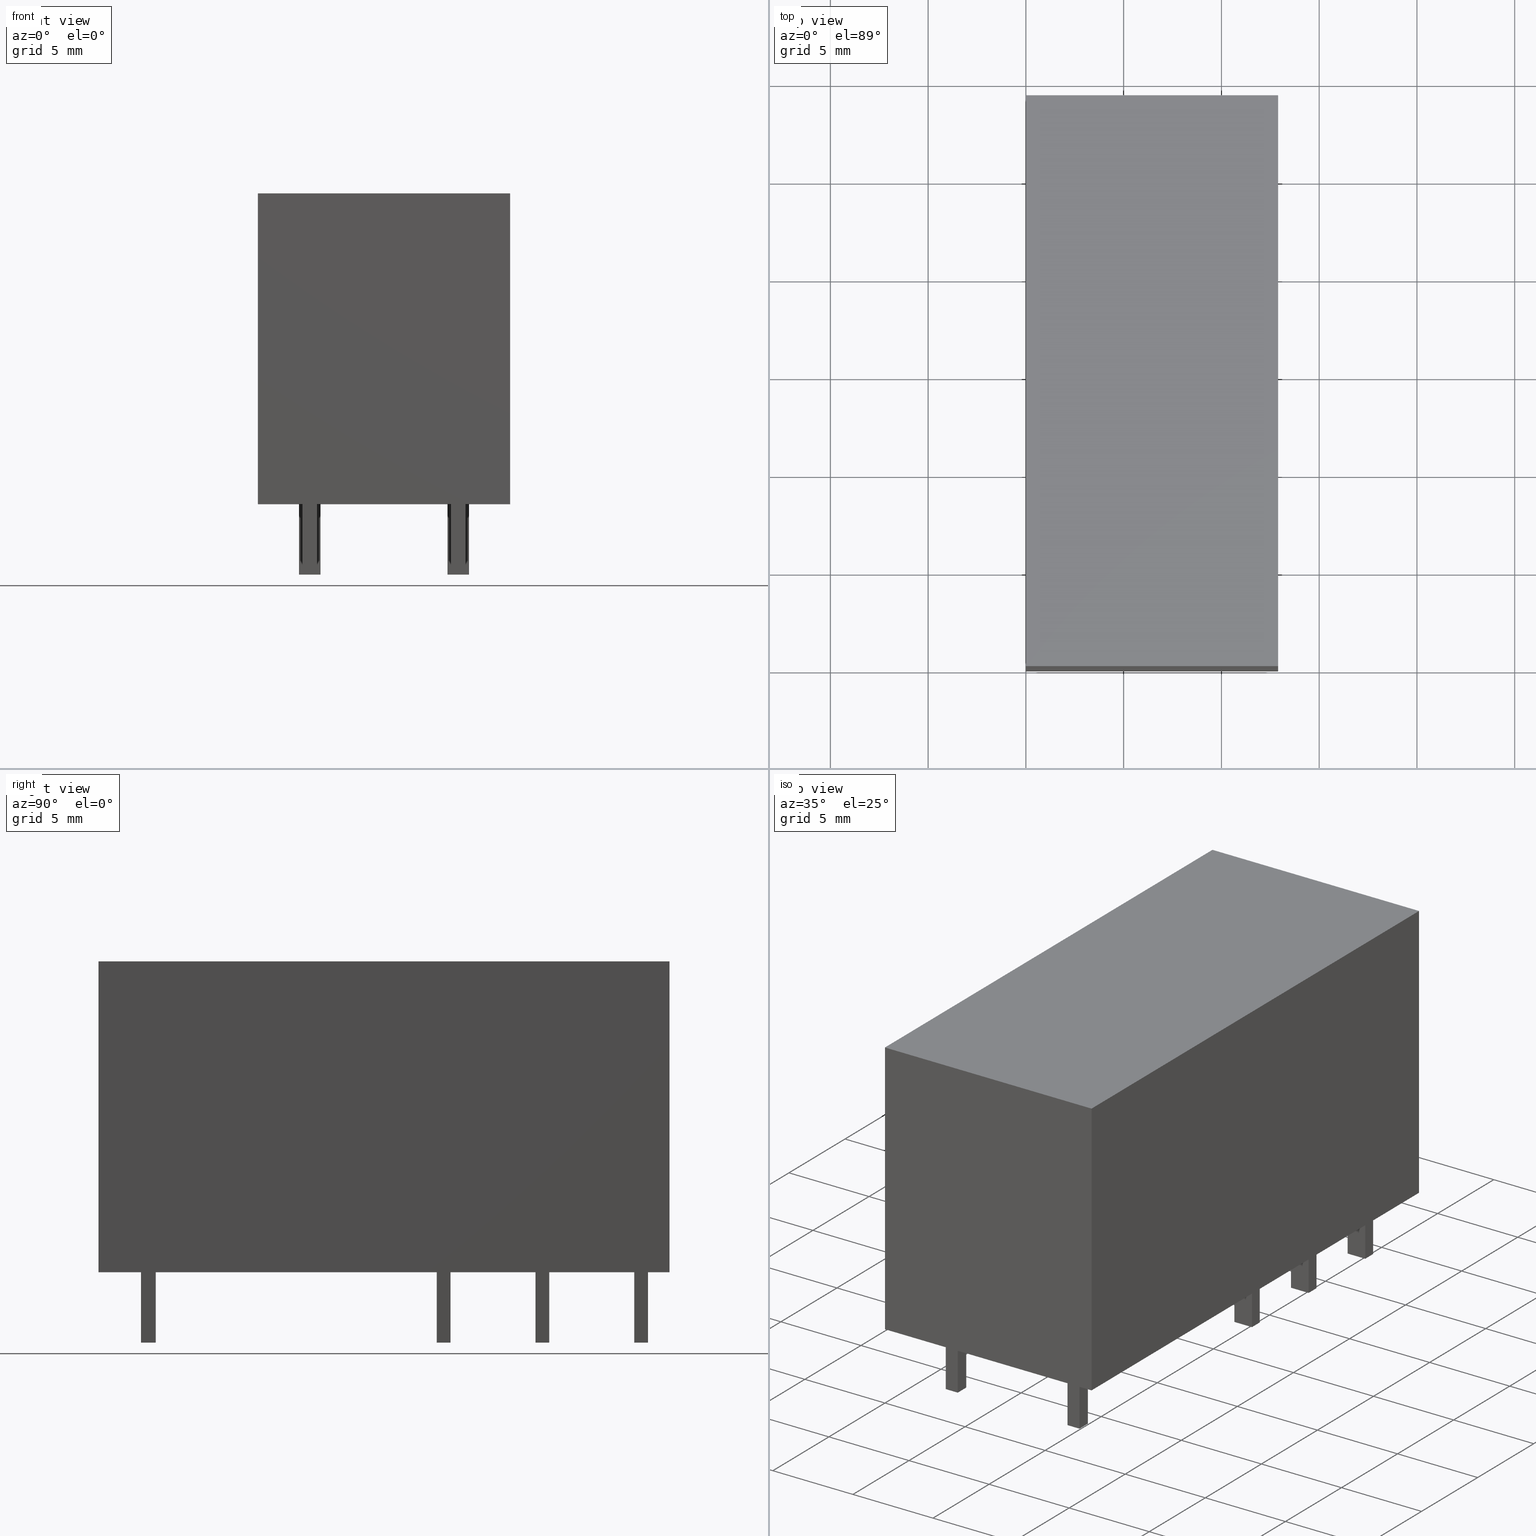
[diagram: canonical four-view strip — front | top / right | iso, engineering-drawing reading convention]
A machine part, canonical four-view strip (front | top / right | iso — engineering-drawing reading convention). The complete STEP part file that produces these views, byte-faithful:
ISO-10303-21;
HEADER;
FILE_DESCRIPTION(('Creo Elements/Direct Modeling STEP Export'),'2;1');
FILE_NAME(
'D:/temp/JobSpoolerServerData/JobServer Files/f70b4be5-32c5-4fb8-8a6a-69
27ec6e0028/work/output/model.stp','2018-10-23T 0:12:38',(''),(''),
'Creo Elements/Direct Modeling STEP processor for AP214 (Solid Model)',
'Creo Elements/Direct Modeling 18.1I  14-Aug-2016 (C) Parametric Technol
ogy GmbH','');
FILE_SCHEMA(('AUTOMOTIVE_DESIGN { 1 0 10303 214 1 1 1 1 }'));
ENDSEC;
DATA;
#10=CARTESIAN_POINT('',(0.,0.,0.));
#20=DIRECTION('',(0.,0.,1.));
#30=DIRECTION('',(1.,0.,0.));
#40=AXIS2_PLACEMENT_3D('',#10,#20,#30);
#50=PLANE('',#40);
#60=CARTESIAN_POINT('',(0.,-6.3,0.));
#70=DIRECTION('',(0.,1.,0.));
#80=VECTOR('',#70,1.);
#90=LINE('',#60,#80);
#100=CARTESIAN_POINT('',(0.,-6.45,0.));
#110=VERTEX_POINT('',#100);
#120=CARTESIAN_POINT('',(0.,6.45,0.));
#130=VERTEX_POINT('',#120);
#140=EDGE_CURVE('',#110,#130,#90,.T.);
#150=ORIENTED_EDGE('',*,*,#140,.F.);
#160=CARTESIAN_POINT('',(0.,6.45,0.));
#170=DIRECTION('',(1.,0.,0.));
#180=VECTOR('',#170,1.);
#190=LINE('',#160,#180);
#200=CARTESIAN_POINT('',(29.2,6.45,0.));
#210=VERTEX_POINT('',#200);
#220=EDGE_CURVE('',#130,#210,#190,.T.);
#230=ORIENTED_EDGE('',*,*,#220,.F.);
#240=CARTESIAN_POINT('',(29.2,6.3,0.));
#250=DIRECTION('',(0.,-1.,0.));
#260=VECTOR('',#250,1.);
#270=LINE('',#240,#260);
#280=CARTESIAN_POINT('',(29.2,-6.45,0.));
#290=VERTEX_POINT('',#280);
#300=EDGE_CURVE('',#210,#290,#270,.T.);
#310=ORIENTED_EDGE('',*,*,#300,.F.);
#320=CARTESIAN_POINT('',(28.8,-6.45,0.));
#330=DIRECTION('',(-1.,0.,0.));
#340=VECTOR('',#330,1.);
#350=LINE('',#320,#340);
#360=EDGE_CURVE('',#290,#110,#350,.T.);
#370=ORIENTED_EDGE('',*,*,#360,.F.);
#380=EDGE_LOOP('',(#370,#310,#230,#150));
#390=FACE_OUTER_BOUND('',#380,.T.);
#400=CARTESIAN_POINT('',(18.,0.,0.));
#410=DIRECTION('',(0.,1.,0.));
#420=VECTOR('',#410,1.);
#430=LINE('',#400,#420);
#440=CARTESIAN_POINT('',(18.,3.25,0.));
#450=VERTEX_POINT('',#440);
#460=CARTESIAN_POINT('',(18.,4.35,0.));
#470=VERTEX_POINT('',#460);
#480=EDGE_CURVE('',#450,#470,#430,.T.);
#490=ORIENTED_EDGE('',*,*,#480,.F.);
#500=CARTESIAN_POINT('',(0.,4.35,0.));
#510=DIRECTION('',(-1.,0.,0.));
#520=VECTOR('',#510,1.);
#530=LINE('',#500,#520);
#540=CARTESIAN_POINT('',(17.3,4.35,0.));
#550=VERTEX_POINT('',#540);
#560=EDGE_CURVE('',#470,#550,#530,.T.);
#570=ORIENTED_EDGE('',*,*,#560,.F.);
#580=CARTESIAN_POINT('',(17.3,0.,0.));
#590=DIRECTION('',(0.,-1.,0.));
#600=VECTOR('',#590,1.);
#610=LINE('',#580,#600);
#620=CARTESIAN_POINT('',(17.3,3.25,0.));
#630=VERTEX_POINT('',#620);
#640=EDGE_CURVE('',#550,#630,#610,.T.);
#650=ORIENTED_EDGE('',*,*,#640,.F.);
#660=CARTESIAN_POINT('',(0.,3.25,0.));
#670=DIRECTION('',(1.,0.,0.));
#680=VECTOR('',#670,1.);
#690=LINE('',#660,#680);
#700=EDGE_CURVE('',#630,#450,#690,.T.);
#710=ORIENTED_EDGE('',*,*,#700,.F.);
#720=EDGE_LOOP('',(#710,#650,#570,#490));
#730=FACE_BOUND('',#720,.T.);
#740=CARTESIAN_POINT('',(27.4,0.,0.));
#750=DIRECTION('',(0.,-1.,0.));
#760=VECTOR('',#750,1.);
#770=LINE('',#740,#760);
#780=CARTESIAN_POINT('',(27.4,4.35,0.));
#790=VERTEX_POINT('',#780);
#800=CARTESIAN_POINT('',(27.4,3.25,0.));
#810=VERTEX_POINT('',#800);
#820=EDGE_CURVE('',#790,#810,#770,.T.);
#830=ORIENTED_EDGE('',*,*,#820,.F.);
#840=CARTESIAN_POINT('',(0.,3.25,0.));
#850=DIRECTION('',(1.,0.,0.));
#860=VECTOR('',#850,1.);
#870=LINE('',#840,#860);
#880=CARTESIAN_POINT('',(28.1,3.25,0.));
#890=VERTEX_POINT('',#880);
#900=EDGE_CURVE('',#810,#890,#870,.T.);
#910=ORIENTED_EDGE('',*,*,#900,.F.);
#920=CARTESIAN_POINT('',(28.1,0.,0.));
#930=DIRECTION('',(0.,1.,0.));
#940=VECTOR('',#930,1.);
#950=LINE('',#920,#940);
#960=CARTESIAN_POINT('',(28.1,4.35,0.));
#970=VERTEX_POINT('',#960);
#980=EDGE_CURVE('',#890,#970,#950,.T.);
#990=ORIENTED_EDGE('',*,*,#980,.F.);
#1000=CARTESIAN_POINT('',(0.,4.35,0.));
#1010=DIRECTION('',(-1.,0.,0.));
#1020=VECTOR('',#1010,1.);
#1030=LINE('',#1000,#1020);
#1040=EDGE_CURVE('',#970,#790,#1030,.T.);
#1050=ORIENTED_EDGE('',*,*,#1040,.F.);
#1060=EDGE_LOOP('',(#1050,#990,#910,#830));
#1070=FACE_BOUND('',#1060,.T.);
#1080=CARTESIAN_POINT('',(0.,3.25,0.));
#1090=DIRECTION('',(1.,0.,0.));
#1100=VECTOR('',#1090,1.);
#1110=LINE('',#1080,#1100);
#1120=CARTESIAN_POINT('',(22.35,3.25,0.));
#1130=VERTEX_POINT('',#1120);
#1140=CARTESIAN_POINT('',(23.05,3.25,0.));
#1150=VERTEX_POINT('',#1140);
#1160=EDGE_CURVE('',#1130,#1150,#1110,.T.);
#1170=ORIENTED_EDGE('',*,*,#1160,.F.);
#1180=CARTESIAN_POINT('',(23.05,0.,0.));
#1190=DIRECTION('',(0.,1.,0.));
#1200=VECTOR('',#1190,1.);
#1210=LINE('',#1180,#1200);
#1220=CARTESIAN_POINT('',(23.05,4.35,0.));
#1230=VERTEX_POINT('',#1220);
#1240=EDGE_CURVE('',#1150,#1230,#1210,.T.);
#1250=ORIENTED_EDGE('',*,*,#1240,.F.);
#1260=CARTESIAN_POINT('',(0.,4.35,0.));
#1270=DIRECTION('',(-1.,0.,0.));
#1280=VECTOR('',#1270,1.);
#1290=LINE('',#1260,#1280);
#1300=CARTESIAN_POINT('',(22.35,4.35,0.));
#1310=VERTEX_POINT('',#1300);
#1320=EDGE_CURVE('',#1230,#1310,#1290,.T.);
#1330=ORIENTED_EDGE('',*,*,#1320,.F.);
#1340=CARTESIAN_POINT('',(22.35,0.,0.));
#1350=DIRECTION('',(0.,-1.,0.));
#1360=VECTOR('',#1350,1.);
#1370=LINE('',#1340,#1360);
#1380=EDGE_CURVE('',#1310,#1130,#1370,.T.);
#1390=ORIENTED_EDGE('',*,*,#1380,.F.);
#1400=EDGE_LOOP('',(#1390,#1330,#1250,#1170));
#1410=FACE_BOUND('',#1400,.T.);
#1420=CARTESIAN_POINT('',(23.05,0.,0.));
#1430=DIRECTION('',(0.,1.,0.));
#1440=VECTOR('',#1430,1.);
#1450=LINE('',#1420,#1440);
#1460=CARTESIAN_POINT('',(23.05,-4.35,0.));
#1470=VERTEX_POINT('',#1460);
#1480=CARTESIAN_POINT('',(23.05,-3.25,0.));
#1490=VERTEX_POINT('',#1480);
#1500=EDGE_CURVE('',#1470,#1490,#1450,.T.);
#1510=ORIENTED_EDGE('',*,*,#1500,.F.);
#1520=CARTESIAN_POINT('',(0.,-3.25,0.));
#1530=DIRECTION('',(-1.,0.,0.));
#1540=VECTOR('',#1530,1.);
#1550=LINE('',#1520,#1540);
#1560=CARTESIAN_POINT('',(22.35,-3.25,0.));
#1570=VERTEX_POINT('',#1560);
#1580=EDGE_CURVE('',#1490,#1570,#1550,.T.);
#1590=ORIENTED_EDGE('',*,*,#1580,.F.);
#1600=CARTESIAN_POINT('',(22.35,0.,0.));
#1610=DIRECTION('',(0.,-1.,0.));
#1620=VECTOR('',#1610,1.);
#1630=LINE('',#1600,#1620);
#1640=CARTESIAN_POINT('',(22.35,-4.35,0.));
#1650=VERTEX_POINT('',#1640);
#1660=EDGE_CURVE('',#1570,#1650,#1630,.T.);
#1670=ORIENTED_EDGE('',*,*,#1660,.F.);
#1680=CARTESIAN_POINT('',(0.,-4.35,0.));
#1690=DIRECTION('',(1.,0.,0.));
#1700=VECTOR('',#1690,1.);
#1710=LINE('',#1680,#1700);
#1720=EDGE_CURVE('',#1650,#1470,#1710,.T.);
#1730=ORIENTED_EDGE('',*,*,#1720,.F.);
#1740=EDGE_LOOP('',(#1730,#1670,#1590,#1510));
#1750=FACE_BOUND('',#1740,.T.);
#1760=CARTESIAN_POINT('',(0.,-3.25,0.));
#1770=DIRECTION('',(-1.,0.,0.));
#1780=VECTOR('',#1770,1.);
#1790=LINE('',#1760,#1780);
#1800=CARTESIAN_POINT('',(18.,-3.25,0.));
#1810=VERTEX_POINT('',#1800);
#1820=CARTESIAN_POINT('',(17.3,-3.25,0.));
#1830=VERTEX_POINT('',#1820);
#1840=EDGE_CURVE('',#1810,#1830,#1790,.T.);
#1850=ORIENTED_EDGE('',*,*,#1840,.F.);
#1860=CARTESIAN_POINT('',(17.3,0.,0.));
#1870=DIRECTION('',(0.,-1.,0.));
#1880=VECTOR('',#1870,1.);
#1890=LINE('',#1860,#1880);
#1900=CARTESIAN_POINT('',(17.3,-4.35,0.));
#1910=VERTEX_POINT('',#1900);
#1920=EDGE_CURVE('',#1830,#1910,#1890,.T.);
#1930=ORIENTED_EDGE('',*,*,#1920,.F.);
#1940=CARTESIAN_POINT('',(0.,-4.35,0.));
#1950=DIRECTION('',(1.,0.,0.));
#1960=VECTOR('',#1950,1.);
#1970=LINE('',#1940,#1960);
#1980=CARTESIAN_POINT('',(18.,-4.35,0.));
#1990=VERTEX_POINT('',#1980);
#2000=EDGE_CURVE('',#1910,#1990,#1970,.T.);
#2010=ORIENTED_EDGE('',*,*,#2000,.F.);
#2020=CARTESIAN_POINT('',(18.,0.,0.));
#2030=DIRECTION('',(0.,1.,0.));
#2040=VECTOR('',#2030,1.);
#2050=LINE('',#2020,#2040);
#2060=EDGE_CURVE('',#1990,#1810,#2050,.T.);
#2070=ORIENTED_EDGE('',*,*,#2060,.F.);
#2080=EDGE_LOOP('',(#2070,#2010,#1930,#1850));
#2090=FACE_BOUND('',#2080,.T.);
#2100=CARTESIAN_POINT('',(0.,-3.25,0.));
#2110=DIRECTION('',(-1.,0.,0.));
#2120=VECTOR('',#2110,1.);
#2130=LINE('',#2100,#2120);
#2140=CARTESIAN_POINT('',(28.1,-3.25,0.));
#2150=VERTEX_POINT('',#2140);
#2160=CARTESIAN_POINT('',(27.4,-3.25,0.));
#2170=VERTEX_POINT('',#2160);
#2180=EDGE_CURVE('',#2150,#2170,#2130,.T.);
#2190=ORIENTED_EDGE('',*,*,#2180,.F.);
#2200=CARTESIAN_POINT('',(27.4,0.,0.));
#2210=DIRECTION('',(0.,-1.,0.));
#2220=VECTOR('',#2210,1.);
#2230=LINE('',#2200,#2220);
#2240=CARTESIAN_POINT('',(27.4,-4.35,0.));
#2250=VERTEX_POINT('',#2240);
#2260=EDGE_CURVE('',#2170,#2250,#2230,.T.);
#2270=ORIENTED_EDGE('',*,*,#2260,.F.);
#2280=CARTESIAN_POINT('',(0.,-4.35,0.));
#2290=DIRECTION('',(1.,0.,0.));
#2300=VECTOR('',#2290,1.);
#2310=LINE('',#2280,#2300);
#2320=CARTESIAN_POINT('',(28.1,-4.35,0.));
#2330=VERTEX_POINT('',#2320);
#2340=EDGE_CURVE('',#2250,#2330,#2310,.T.);
#2350=ORIENTED_EDGE('',*,*,#2340,.F.);
#2360=CARTESIAN_POINT('',(28.1,0.,0.));
#2370=DIRECTION('',(0.,1.,0.));
#2380=VECTOR('',#2370,1.);
#2390=LINE('',#2360,#2380);
#2400=EDGE_CURVE('',#2330,#2150,#2390,.T.);
#2410=ORIENTED_EDGE('',*,*,#2400,.F.);
#2420=EDGE_LOOP('',(#2410,#2350,#2270,#2190));
#2430=FACE_BOUND('',#2420,.T.);
#2440=CARTESIAN_POINT('',(2.175,0.,0.));
#2450=DIRECTION('',(0.,-1.,0.));
#2460=VECTOR('',#2450,1.);
#2470=LINE('',#2440,#2460);
#2480=CARTESIAN_POINT('',(2.175,-3.425,0.));
#2490=VERTEX_POINT('',#2480);
#2500=CARTESIAN_POINT('',(2.175,-4.175,0.));
#2510=VERTEX_POINT('',#2500);
#2520=EDGE_CURVE('',#2490,#2510,#2470,.T.);
#2530=ORIENTED_EDGE('',*,*,#2520,.F.);
#2540=CARTESIAN_POINT('',(0.,-4.175,0.));
#2550=DIRECTION('',(1.,0.,0.));
#2560=VECTOR('',#2550,1.);
#2570=LINE('',#2540,#2560);
#2580=CARTESIAN_POINT('',(2.925,-4.175,0.));
#2590=VERTEX_POINT('',#2580);
#2600=EDGE_CURVE('',#2510,#2590,#2570,.T.);
#2610=ORIENTED_EDGE('',*,*,#2600,.F.);
#2620=CARTESIAN_POINT('',(2.925,0.,0.));
#2630=DIRECTION('',(0.,1.,0.));
#2640=VECTOR('',#2630,1.);
#2650=LINE('',#2620,#2640);
#2660=CARTESIAN_POINT('',(2.925,-3.425,0.));
#2670=VERTEX_POINT('',#2660);
#2680=EDGE_CURVE('',#2590,#2670,#2650,.T.);
#2690=ORIENTED_EDGE('',*,*,#2680,.F.);
#2700=CARTESIAN_POINT('',(0.,-3.425,0.));
#2710=DIRECTION('',(-1.,0.,0.));
#2720=VECTOR('',#2710,1.);
#2730=LINE('',#2700,#2720);
#2740=EDGE_CURVE('',#2670,#2490,#2730,.T.);
#2750=ORIENTED_EDGE('',*,*,#2740,.F.);
#2760=EDGE_LOOP('',(#2750,#2690,#2610,#2530));
#2770=FACE_BOUND('',#2760,.T.);
#2780=CARTESIAN_POINT('',(2.925,0.,0.));
#2790=DIRECTION('',(0.,1.,0.));
#2800=VECTOR('',#2790,1.);
#2810=LINE('',#2780,#2800);
#2820=CARTESIAN_POINT('',(2.925,3.425,0.));
#2830=VERTEX_POINT('',#2820);
#2840=CARTESIAN_POINT('',(2.925,4.175,0.));
#2850=VERTEX_POINT('',#2840);
#2860=EDGE_CURVE('',#2830,#2850,#2810,.T.);
#2870=ORIENTED_EDGE('',*,*,#2860,.F.);
#2880=CARTESIAN_POINT('',(0.,4.175,0.));
#2890=DIRECTION('',(-1.,0.,0.));
#2900=VECTOR('',#2890,1.);
#2910=LINE('',#2880,#2900);
#2920=CARTESIAN_POINT('',(2.175,4.175,0.));
#2930=VERTEX_POINT('',#2920);
#2940=EDGE_CURVE('',#2850,#2930,#2910,.T.);
#2950=ORIENTED_EDGE('',*,*,#2940,.F.);
#2960=CARTESIAN_POINT('',(2.175,0.,0.));
#2970=DIRECTION('',(0.,-1.,0.));
#2980=VECTOR('',#2970,1.);
#2990=LINE('',#2960,#2980);
#3000=CARTESIAN_POINT('',(2.175,3.425,0.));
#3010=VERTEX_POINT('',#3000);
#3020=EDGE_CURVE('',#2930,#3010,#2990,.T.);
#3030=ORIENTED_EDGE('',*,*,#3020,.F.);
#3040=CARTESIAN_POINT('',(0.,3.425,0.));
#3050=DIRECTION('',(1.,0.,0.));
#3060=VECTOR('',#3050,1.);
#3070=LINE('',#3040,#3060);
#3080=EDGE_CURVE('',#3010,#2830,#3070,.T.);
#3090=ORIENTED_EDGE('',*,*,#3080,.F.);
#3100=EDGE_LOOP('',(#3090,#3030,#2950,#2870));
#3110=FACE_BOUND('',#3100,.T.);
#3120=ADVANCED_FACE('',(#390,#730,#1070,#1410,#1750,#2090,#2430,#2770,
#3110),#50,.T.);
#3130=COLOUR_RGB('',0.980392217636108,1.,1.);
#3140=FILL_AREA_STYLE_COLOUR('',#3130);
#3150=FILL_AREA_STYLE('',(#3140));
#3160=SURFACE_STYLE_FILL_AREA(#3150);
#3170=SURFACE_SIDE_STYLE('',(#3160));
#3180=SURFACE_STYLE_USAGE(.BOTH.,#3170);
#3190=PRESENTATION_STYLE_ASSIGNMENT((#3180));
#3200=CARTESIAN_POINT('',(0.,0.,-15.9));
#3210=DIRECTION('',(0.,0.,1.));
#3220=DIRECTION('',(1.,0.,0.));
#3230=AXIS2_PLACEMENT_3D('',#3200,#3210,#3220);
#3240=PLANE('',#3230);
#3250=CARTESIAN_POINT('',(28.8,-6.45,-15.9));
#3260=DIRECTION('',(-1.,0.,0.));
#3270=VECTOR('',#3260,1.);
#3280=LINE('',#3250,#3270);
#3290=CARTESIAN_POINT('',(29.2,-6.45,-15.9));
#3300=VERTEX_POINT('',#3290);
#3310=CARTESIAN_POINT('',(0.,-6.45,-15.9));
#3320=VERTEX_POINT('',#3310);
#3330=EDGE_CURVE('',#3300,#3320,#3280,.T.);
#3340=ORIENTED_EDGE('',*,*,#3330,.T.);
#3350=CARTESIAN_POINT('',(29.2,6.3,-15.9));
#3360=DIRECTION('',(0.,-1.,0.));
#3370=VECTOR('',#3360,1.);
#3380=LINE('',#3350,#3370);
#3390=CARTESIAN_POINT('',(29.2,6.45,-15.9));
#3400=VERTEX_POINT('',#3390);
#3410=EDGE_CURVE('',#3400,#3300,#3380,.T.);
#3420=ORIENTED_EDGE('',*,*,#3410,.T.);
#3430=CARTESIAN_POINT('',(0.,6.45,-15.9));
#3440=DIRECTION('',(1.,0.,0.));
#3450=VECTOR('',#3440,1.);
#3460=LINE('',#3430,#3450);
#3470=CARTESIAN_POINT('',(0.,6.45,-15.9));
#3480=VERTEX_POINT('',#3470);
#3490=EDGE_CURVE('',#3480,#3400,#3460,.T.);
#3500=ORIENTED_EDGE('',*,*,#3490,.T.);
#3510=CARTESIAN_POINT('',(0.,-6.3,-15.9));
#3520=DIRECTION('',(0.,1.,0.));
#3530=VECTOR('',#3520,1.);
#3540=LINE('',#3510,#3530);
#3550=EDGE_CURVE('',#3320,#3480,#3540,.T.);
#3560=ORIENTED_EDGE('',*,*,#3550,.T.);
#3570=EDGE_LOOP('',(#3560,#3500,#3420,#3340));
#3580=FACE_OUTER_BOUND('',#3570,.T.);
#3590=ADVANCED_FACE('',(#3580),#3240,.F.);
#3600=COLOUR_RGB('',0.980392217636108,1.,1.);
#3610=FILL_AREA_STYLE_COLOUR('',#3600);
#3620=FILL_AREA_STYLE('',(#3610));
#3630=SURFACE_STYLE_FILL_AREA(#3620);
#3640=SURFACE_SIDE_STYLE('',(#3630));
#3650=SURFACE_STYLE_USAGE(.BOTH.,#3640);
#3660=PRESENTATION_STYLE_ASSIGNMENT((#3650));
#3670=CARTESIAN_POINT('',(28.8,-6.45,0.));
#3680=DIRECTION('',(-0.,1.,0.));
#3690=DIRECTION('',(1.,0.,0.));
#3700=AXIS2_PLACEMENT_3D('',#3670,#3680,#3690);
#3710=PLANE('',#3700);
#3720=ORIENTED_EDGE('',*,*,#360,.T.);
#3730=CARTESIAN_POINT('',(29.2,-6.45,0.));
#3740=DIRECTION('',(0.,0.,-1.));
#3750=VECTOR('',#3740,1.);
#3760=LINE('',#3730,#3750);
#3770=EDGE_CURVE('',#290,#3300,#3760,.T.);
#3780=ORIENTED_EDGE('',*,*,#3770,.F.);
#3790=ORIENTED_EDGE('',*,*,#3330,.F.);
#3800=CARTESIAN_POINT('',(0.,-6.45,0.));
#3810=DIRECTION('',(0.,0.,-1.));
#3820=VECTOR('',#3810,1.);
#3830=LINE('',#3800,#3820);
#3840=EDGE_CURVE('',#110,#3320,#3830,.T.);
#3850=ORIENTED_EDGE('',*,*,#3840,.T.);
#3860=EDGE_LOOP('',(#3850,#3790,#3780,#3720));
#3870=FACE_OUTER_BOUND('',#3860,.T.);
#3880=ADVANCED_FACE('',(#3870),#3710,.F.);
#3890=COLOUR_RGB('',0.980392217636108,1.,1.);
#3900=FILL_AREA_STYLE_COLOUR('',#3890);
#3910=FILL_AREA_STYLE('',(#3900));
#3920=SURFACE_STYLE_FILL_AREA(#3910);
#3930=SURFACE_SIDE_STYLE('',(#3920));
#3940=SURFACE_STYLE_USAGE(.BOTH.,#3930);
#3950=PRESENTATION_STYLE_ASSIGNMENT((#3940));
#3960=CARTESIAN_POINT('',(29.2,6.3,0.));
#3970=DIRECTION('',(-1.,0.,0.));
#3980=DIRECTION('',(0.,1.,0.));
#3990=AXIS2_PLACEMENT_3D('',#3960,#3970,#3980);
#4000=PLANE('',#3990);
#4010=ORIENTED_EDGE('',*,*,#300,.T.);
#4020=CARTESIAN_POINT('',(29.2,6.45,0.));
#4030=DIRECTION('',(0.,0.,-1.));
#4040=VECTOR('',#4030,1.);
#4050=LINE('',#4020,#4040);
#4060=EDGE_CURVE('',#210,#3400,#4050,.T.);
#4070=ORIENTED_EDGE('',*,*,#4060,.F.);
#4080=ORIENTED_EDGE('',*,*,#3410,.F.);
#4090=ORIENTED_EDGE('',*,*,#3770,.T.);
#4100=EDGE_LOOP('',(#4090,#4080,#4070,#4010));
#4110=FACE_OUTER_BOUND('',#4100,.T.);
#4120=ADVANCED_FACE('',(#4110),#4000,.F.);
#4130=COLOUR_RGB('',0.980392217636108,1.,1.);
#4140=FILL_AREA_STYLE_COLOUR('',#4130);
#4150=FILL_AREA_STYLE('',(#4140));
#4160=SURFACE_STYLE_FILL_AREA(#4150);
#4170=SURFACE_SIDE_STYLE('',(#4160));
#4180=SURFACE_STYLE_USAGE(.BOTH.,#4170);
#4190=PRESENTATION_STYLE_ASSIGNMENT((#4180));
#4200=CARTESIAN_POINT('',(0.,6.45,0.));
#4210=DIRECTION('',(-0.,-1.,-0.));
#4220=DIRECTION('',(-1.,0.,0.));
#4230=AXIS2_PLACEMENT_3D('',#4200,#4210,#4220);
#4240=PLANE('',#4230);
#4250=ORIENTED_EDGE('',*,*,#220,.T.);
#4260=CARTESIAN_POINT('',(0.,6.45,0.));
#4270=DIRECTION('',(0.,0.,-1.));
#4280=VECTOR('',#4270,1.);
#4290=LINE('',#4260,#4280);
#4300=EDGE_CURVE('',#130,#3480,#4290,.T.);
#4310=ORIENTED_EDGE('',*,*,#4300,.F.);
#4320=ORIENTED_EDGE('',*,*,#3490,.F.);
#4330=ORIENTED_EDGE('',*,*,#4060,.T.);
#4340=EDGE_LOOP('',(#4330,#4320,#4310,#4250));
#4350=FACE_OUTER_BOUND('',#4340,.T.);
#4360=ADVANCED_FACE('',(#4350),#4240,.F.);
#4370=COLOUR_RGB('',0.980392217636108,1.,1.);
#4380=FILL_AREA_STYLE_COLOUR('',#4370);
#4390=FILL_AREA_STYLE('',(#4380));
#4400=SURFACE_STYLE_FILL_AREA(#4390);
#4410=SURFACE_SIDE_STYLE('',(#4400));
#4420=SURFACE_STYLE_USAGE(.BOTH.,#4410);
#4430=PRESENTATION_STYLE_ASSIGNMENT((#4420));
#4440=CARTESIAN_POINT('',(0.,-6.3,0.));
#4450=DIRECTION('',(1.,0.,0.));
#4460=DIRECTION('',(0.,-1.,0.));
#4470=AXIS2_PLACEMENT_3D('',#4440,#4450,#4460);
#4480=PLANE('',#4470);
#4490=ORIENTED_EDGE('',*,*,#140,.T.);
#4500=ORIENTED_EDGE('',*,*,#3840,.F.);
#4510=ORIENTED_EDGE('',*,*,#3550,.F.);
#4520=ORIENTED_EDGE('',*,*,#4300,.T.);
#4530=EDGE_LOOP('',(#4520,#4510,#4500,#4490));
#4540=FACE_OUTER_BOUND('',#4530,.T.);
#4550=ADVANCED_FACE('',(#4540),#4480,.F.);
#4560=COLOUR_RGB('',0.980392217636108,1.,1.);
#4570=FILL_AREA_STYLE_COLOUR('',#4560);
#4580=FILL_AREA_STYLE('',(#4570));
#4590=SURFACE_STYLE_FILL_AREA(#4580);
#4600=SURFACE_SIDE_STYLE('',(#4590));
#4610=SURFACE_STYLE_USAGE(.BOTH.,#4600);
#4620=PRESENTATION_STYLE_ASSIGNMENT((#4610));
#4630=CARTESIAN_POINT('',(0.,0.,3.6));
#4640=DIRECTION('',(0.,0.,1.));
#4650=DIRECTION('',(1.,0.,0.));
#4660=AXIS2_PLACEMENT_3D('',#4630,#4640,#4650);
#4670=PLANE('',#4660);
#4680=CARTESIAN_POINT('',(17.3,3.25,3.6));
#4690=DIRECTION('',(0.,1.,0.));
#4700=VECTOR('',#4690,1.);
#4710=LINE('',#4680,#4700);
#4720=CARTESIAN_POINT('',(17.3,3.25,3.6));
#4730=VERTEX_POINT('',#4720);
#4740=CARTESIAN_POINT('',(17.3,4.35,3.6));
#4750=VERTEX_POINT('',#4740);
#4760=EDGE_CURVE('',#4730,#4750,#4710,.T.);
#4770=ORIENTED_EDGE('',*,*,#4760,.F.);
#4780=CARTESIAN_POINT('',(17.3,4.35,3.6));
#4790=DIRECTION('',(1.,0.,0.));
#4800=VECTOR('',#4790,1.);
#4810=LINE('',#4780,#4800);
#4820=CARTESIAN_POINT('',(18.,4.35,3.6));
#4830=VERTEX_POINT('',#4820);
#4840=EDGE_CURVE('',#4750,#4830,#4810,.T.);
#4850=ORIENTED_EDGE('',*,*,#4840,.F.);
#4860=CARTESIAN_POINT('',(18.,4.35,3.6));
#4870=DIRECTION('',(0.,-1.,0.));
#4880=VECTOR('',#4870,1.);
#4890=LINE('',#4860,#4880);
#4900=CARTESIAN_POINT('',(18.,3.25,3.6));
#4910=VERTEX_POINT('',#4900);
#4920=EDGE_CURVE('',#4830,#4910,#4890,.T.);
#4930=ORIENTED_EDGE('',*,*,#4920,.F.);
#4940=CARTESIAN_POINT('',(18.,3.25,3.6));
#4950=DIRECTION('',(-1.,0.,0.));
#4960=VECTOR('',#4950,1.);
#4970=LINE('',#4940,#4960);
#4980=EDGE_CURVE('',#4910,#4730,#4970,.T.);
#4990=ORIENTED_EDGE('',*,*,#4980,.F.);
#5000=EDGE_LOOP('',(#4990,#4930,#4850,#4770));
#5010=FACE_OUTER_BOUND('',#5000,.T.);
#5020=ADVANCED_FACE('',(#5010),#4670,.T.);
#5030=COLOUR_RGB('',0.823529481887817,0.823529481887817,
0.784313797950745);
#5040=FILL_AREA_STYLE_COLOUR('',#5030);
#5050=FILL_AREA_STYLE('',(#5040));
#5060=SURFACE_STYLE_FILL_AREA(#5050);
#5070=SURFACE_SIDE_STYLE('',(#5060));
#5080=SURFACE_STYLE_USAGE(.BOTH.,#5070);
#5090=PRESENTATION_STYLE_ASSIGNMENT((#5080));
#5100=CARTESIAN_POINT('',(18.,4.35,0.));
#5110=DIRECTION('',(1.,0.,0.));
#5120=DIRECTION('',(0.,-1.,0.));
#5130=AXIS2_PLACEMENT_3D('',#5100,#5110,#5120);
#5140=PLANE('',#5130);
#5150=CARTESIAN_POINT('',(18.,3.25,0.));
#5160=DIRECTION('',(0.,0.,1.));
#5170=VECTOR('',#5160,1.);
#5180=LINE('',#5150,#5170);
#5190=EDGE_CURVE('',#450,#4910,#5180,.T.);
#5200=ORIENTED_EDGE('',*,*,#5190,.F.);
#5210=ORIENTED_EDGE('',*,*,#4920,.T.);
#5220=CARTESIAN_POINT('',(18.,4.35,0.));
#5230=DIRECTION('',(0.,0.,1.));
#5240=VECTOR('',#5230,1.);
#5250=LINE('',#5220,#5240);
#5260=EDGE_CURVE('',#470,#4830,#5250,.T.);
#5270=ORIENTED_EDGE('',*,*,#5260,.T.);
#5280=ORIENTED_EDGE('',*,*,#480,.T.);
#5290=EDGE_LOOP('',(#5280,#5270,#5210,#5200));
#5300=FACE_OUTER_BOUND('',#5290,.T.);
#5310=ADVANCED_FACE('',(#5300),#5140,.T.);
#5320=COLOUR_RGB('',0.823529481887817,0.823529481887817,
0.784313797950745);
#5330=FILL_AREA_STYLE_COLOUR('',#5320);
#5340=FILL_AREA_STYLE('',(#5330));
#5350=SURFACE_STYLE_FILL_AREA(#5340);
#5360=SURFACE_SIDE_STYLE('',(#5350));
#5370=SURFACE_STYLE_USAGE(.BOTH.,#5360);
#5380=PRESENTATION_STYLE_ASSIGNMENT((#5370));
#5390=CARTESIAN_POINT('',(17.3,4.35,0.));
#5400=DIRECTION('',(-0.,1.,0.));
#5410=DIRECTION('',(1.,0.,0.));
#5420=AXIS2_PLACEMENT_3D('',#5390,#5400,#5410);
#5430=PLANE('',#5420);
#5440=ORIENTED_EDGE('',*,*,#5260,.F.);
#5450=ORIENTED_EDGE('',*,*,#4840,.T.);
#5460=CARTESIAN_POINT('',(17.3,4.35,0.));
#5470=DIRECTION('',(0.,0.,1.));
#5480=VECTOR('',#5470,1.);
#5490=LINE('',#5460,#5480);
#5500=EDGE_CURVE('',#550,#4750,#5490,.T.);
#5510=ORIENTED_EDGE('',*,*,#5500,.T.);
#5520=ORIENTED_EDGE('',*,*,#560,.T.);
#5530=EDGE_LOOP('',(#5520,#5510,#5450,#5440));
#5540=FACE_OUTER_BOUND('',#5530,.T.);
#5550=ADVANCED_FACE('',(#5540),#5430,.T.);
#5560=COLOUR_RGB('',0.823529481887817,0.823529481887817,
0.784313797950745);
#5570=FILL_AREA_STYLE_COLOUR('',#5560);
#5580=FILL_AREA_STYLE('',(#5570));
#5590=SURFACE_STYLE_FILL_AREA(#5580);
#5600=SURFACE_SIDE_STYLE('',(#5590));
#5610=SURFACE_STYLE_USAGE(.BOTH.,#5600);
#5620=PRESENTATION_STYLE_ASSIGNMENT((#5610));
#5630=CARTESIAN_POINT('',(17.3,3.25,0.));
#5640=DIRECTION('',(-1.,0.,0.));
#5650=DIRECTION('',(0.,1.,0.));
#5660=AXIS2_PLACEMENT_3D('',#5630,#5640,#5650);
#5670=PLANE('',#5660);
#5680=ORIENTED_EDGE('',*,*,#5500,.F.);
#5690=ORIENTED_EDGE('',*,*,#4760,.T.);
#5700=CARTESIAN_POINT('',(17.3,3.25,0.));
#5710=DIRECTION('',(0.,0.,1.));
#5720=VECTOR('',#5710,1.);
#5730=LINE('',#5700,#5720);
#5740=EDGE_CURVE('',#630,#4730,#5730,.T.);
#5750=ORIENTED_EDGE('',*,*,#5740,.T.);
#5760=ORIENTED_EDGE('',*,*,#640,.T.);
#5770=EDGE_LOOP('',(#5760,#5750,#5690,#5680));
#5780=FACE_OUTER_BOUND('',#5770,.T.);
#5790=ADVANCED_FACE('',(#5780),#5670,.T.);
#5800=COLOUR_RGB('',0.823529481887817,0.823529481887817,
0.784313797950745);
#5810=FILL_AREA_STYLE_COLOUR('',#5800);
#5820=FILL_AREA_STYLE('',(#5810));
#5830=SURFACE_STYLE_FILL_AREA(#5820);
#5840=SURFACE_SIDE_STYLE('',(#5830));
#5850=SURFACE_STYLE_USAGE(.BOTH.,#5840);
#5860=PRESENTATION_STYLE_ASSIGNMENT((#5850));
#5870=CARTESIAN_POINT('',(18.,3.25,0.));
#5880=DIRECTION('',(-0.,-1.,-0.));
#5890=DIRECTION('',(-1.,0.,0.));
#5900=AXIS2_PLACEMENT_3D('',#5870,#5880,#5890);
#5910=PLANE('',#5900);
#5920=ORIENTED_EDGE('',*,*,#5740,.F.);
#5930=ORIENTED_EDGE('',*,*,#4980,.T.);
#5940=ORIENTED_EDGE('',*,*,#5190,.T.);
#5950=ORIENTED_EDGE('',*,*,#700,.T.);
#5960=EDGE_LOOP('',(#5950,#5940,#5930,#5920));
#5970=FACE_OUTER_BOUND('',#5960,.T.);
#5980=ADVANCED_FACE('',(#5970),#5910,.T.);
#5990=COLOUR_RGB('',0.823529481887817,0.823529481887817,
0.784313797950745);
#6000=FILL_AREA_STYLE_COLOUR('',#5990);
#6010=FILL_AREA_STYLE('',(#6000));
#6020=SURFACE_STYLE_FILL_AREA(#6010);
#6030=SURFACE_SIDE_STYLE('',(#6020));
#6040=SURFACE_STYLE_USAGE(.BOTH.,#6030);
#6050=PRESENTATION_STYLE_ASSIGNMENT((#6040));
#6060=CARTESIAN_POINT('',(0.,0.,3.6));
#6070=DIRECTION('',(0.,0.,1.));
#6080=DIRECTION('',(1.,0.,0.));
#6090=AXIS2_PLACEMENT_3D('',#6060,#6070,#6080);
#6100=PLANE('',#6090);
#6110=CARTESIAN_POINT('',(27.4,3.25,3.6));
#6120=DIRECTION('',(0.,1.,0.));
#6130=VECTOR('',#6120,1.);
#6140=LINE('',#6110,#6130);
#6150=CARTESIAN_POINT('',(27.4,3.25,3.6));
#6160=VERTEX_POINT('',#6150);
#6170=CARTESIAN_POINT('',(27.4,4.35,3.6));
#6180=VERTEX_POINT('',#6170);
#6190=EDGE_CURVE('',#6160,#6180,#6140,.T.);
#6200=ORIENTED_EDGE('',*,*,#6190,.F.);
#6210=CARTESIAN_POINT('',(27.4,4.35,3.6));
#6220=DIRECTION('',(1.,0.,0.));
#6230=VECTOR('',#6220,1.);
#6240=LINE('',#6210,#6230);
#6250=CARTESIAN_POINT('',(28.1,4.35,3.6));
#6260=VERTEX_POINT('',#6250);
#6270=EDGE_CURVE('',#6180,#6260,#6240,.T.);
#6280=ORIENTED_EDGE('',*,*,#6270,.F.);
#6290=CARTESIAN_POINT('',(28.1,4.35,3.6));
#6300=DIRECTION('',(0.,-1.,0.));
#6310=VECTOR('',#6300,1.);
#6320=LINE('',#6290,#6310);
#6330=CARTESIAN_POINT('',(28.1,3.25,3.6));
#6340=VERTEX_POINT('',#6330);
#6350=EDGE_CURVE('',#6260,#6340,#6320,.T.);
#6360=ORIENTED_EDGE('',*,*,#6350,.F.);
#6370=CARTESIAN_POINT('',(28.1,3.25,3.6));
#6380=DIRECTION('',(-1.,0.,0.));
#6390=VECTOR('',#6380,1.);
#6400=LINE('',#6370,#6390);
#6410=EDGE_CURVE('',#6340,#6160,#6400,.T.);
#6420=ORIENTED_EDGE('',*,*,#6410,.F.);
#6430=EDGE_LOOP('',(#6420,#6360,#6280,#6200));
#6440=FACE_OUTER_BOUND('',#6430,.T.);
#6450=ADVANCED_FACE('',(#6440),#6100,.T.);
#6460=COLOUR_RGB('',0.823529481887817,0.823529481887817,
0.784313797950745);
#6470=FILL_AREA_STYLE_COLOUR('',#6460);
#6480=FILL_AREA_STYLE('',(#6470));
#6490=SURFACE_STYLE_FILL_AREA(#6480);
#6500=SURFACE_SIDE_STYLE('',(#6490));
#6510=SURFACE_STYLE_USAGE(.BOTH.,#6500);
#6520=PRESENTATION_STYLE_ASSIGNMENT((#6510));
#6530=CARTESIAN_POINT('',(27.4,3.25,0.));
#6540=DIRECTION('',(-1.,0.,0.));
#6550=DIRECTION('',(0.,1.,0.));
#6560=AXIS2_PLACEMENT_3D('',#6530,#6540,#6550);
#6570=PLANE('',#6560);
#6580=CARTESIAN_POINT('',(27.4,4.35,0.));
#6590=DIRECTION('',(0.,0.,1.));
#6600=VECTOR('',#6590,1.);
#6610=LINE('',#6580,#6600);
#6620=EDGE_CURVE('',#790,#6180,#6610,.T.);
#6630=ORIENTED_EDGE('',*,*,#6620,.F.);
#6640=ORIENTED_EDGE('',*,*,#6190,.T.);
#6650=CARTESIAN_POINT('',(27.4,3.25,0.));
#6660=DIRECTION('',(0.,0.,1.));
#6670=VECTOR('',#6660,1.);
#6680=LINE('',#6650,#6670);
#6690=EDGE_CURVE('',#810,#6160,#6680,.T.);
#6700=ORIENTED_EDGE('',*,*,#6690,.T.);
#6710=ORIENTED_EDGE('',*,*,#820,.T.);
#6720=EDGE_LOOP('',(#6710,#6700,#6640,#6630));
#6730=FACE_OUTER_BOUND('',#6720,.T.);
#6740=ADVANCED_FACE('',(#6730),#6570,.T.);
#6750=COLOUR_RGB('',0.823529481887817,0.823529481887817,
0.784313797950745);
#6760=FILL_AREA_STYLE_COLOUR('',#6750);
#6770=FILL_AREA_STYLE('',(#6760));
#6780=SURFACE_STYLE_FILL_AREA(#6770);
#6790=SURFACE_SIDE_STYLE('',(#6780));
#6800=SURFACE_STYLE_USAGE(.BOTH.,#6790);
#6810=PRESENTATION_STYLE_ASSIGNMENT((#6800));
#6820=CARTESIAN_POINT('',(28.1,3.25,0.));
#6830=DIRECTION('',(-0.,-1.,-0.));
#6840=DIRECTION('',(-1.,0.,0.));
#6850=AXIS2_PLACEMENT_3D('',#6820,#6830,#6840);
#6860=PLANE('',#6850);
#6870=ORIENTED_EDGE('',*,*,#6690,.F.);
#6880=ORIENTED_EDGE('',*,*,#6410,.T.);
#6890=CARTESIAN_POINT('',(28.1,3.25,0.));
#6900=DIRECTION('',(0.,0.,1.));
#6910=VECTOR('',#6900,1.);
#6920=LINE('',#6890,#6910);
#6930=EDGE_CURVE('',#890,#6340,#6920,.T.);
#6940=ORIENTED_EDGE('',*,*,#6930,.T.);
#6950=ORIENTED_EDGE('',*,*,#900,.T.);
#6960=EDGE_LOOP('',(#6950,#6940,#6880,#6870));
#6970=FACE_OUTER_BOUND('',#6960,.T.);
#6980=ADVANCED_FACE('',(#6970),#6860,.T.);
#6990=COLOUR_RGB('',0.823529481887817,0.823529481887817,
0.784313797950745);
#7000=FILL_AREA_STYLE_COLOUR('',#6990);
#7010=FILL_AREA_STYLE('',(#7000));
#7020=SURFACE_STYLE_FILL_AREA(#7010);
#7030=SURFACE_SIDE_STYLE('',(#7020));
#7040=SURFACE_STYLE_USAGE(.BOTH.,#7030);
#7050=PRESENTATION_STYLE_ASSIGNMENT((#7040));
#7060=CARTESIAN_POINT('',(28.1,4.35,0.));
#7070=DIRECTION('',(1.,0.,0.));
#7080=DIRECTION('',(0.,-1.,0.));
#7090=AXIS2_PLACEMENT_3D('',#7060,#7070,#7080);
#7100=PLANE('',#7090);
#7110=ORIENTED_EDGE('',*,*,#6930,.F.);
#7120=ORIENTED_EDGE('',*,*,#6350,.T.);
#7130=CARTESIAN_POINT('',(28.1,4.35,0.));
#7140=DIRECTION('',(0.,0.,1.));
#7150=VECTOR('',#7140,1.);
#7160=LINE('',#7130,#7150);
#7170=EDGE_CURVE('',#970,#6260,#7160,.T.);
#7180=ORIENTED_EDGE('',*,*,#7170,.T.);
#7190=ORIENTED_EDGE('',*,*,#980,.T.);
#7200=EDGE_LOOP('',(#7190,#7180,#7120,#7110));
#7210=FACE_OUTER_BOUND('',#7200,.T.);
#7220=ADVANCED_FACE('',(#7210),#7100,.T.);
#7230=COLOUR_RGB('',0.823529481887817,0.823529481887817,
0.784313797950745);
#7240=FILL_AREA_STYLE_COLOUR('',#7230);
#7250=FILL_AREA_STYLE('',(#7240));
#7260=SURFACE_STYLE_FILL_AREA(#7250);
#7270=SURFACE_SIDE_STYLE('',(#7260));
#7280=SURFACE_STYLE_USAGE(.BOTH.,#7270);
#7290=PRESENTATION_STYLE_ASSIGNMENT((#7280));
#7300=CARTESIAN_POINT('',(27.4,4.35,0.));
#7310=DIRECTION('',(-0.,1.,0.));
#7320=DIRECTION('',(1.,0.,0.));
#7330=AXIS2_PLACEMENT_3D('',#7300,#7310,#7320);
#7340=PLANE('',#7330);
#7350=ORIENTED_EDGE('',*,*,#7170,.F.);
#7360=ORIENTED_EDGE('',*,*,#6270,.T.);
#7370=ORIENTED_EDGE('',*,*,#6620,.T.);
#7380=ORIENTED_EDGE('',*,*,#1040,.T.);
#7390=EDGE_LOOP('',(#7380,#7370,#7360,#7350));
#7400=FACE_OUTER_BOUND('',#7390,.T.);
#7410=ADVANCED_FACE('',(#7400),#7340,.T.);
#7420=COLOUR_RGB('',0.823529481887817,0.823529481887817,
0.784313797950745);
#7430=FILL_AREA_STYLE_COLOUR('',#7420);
#7440=FILL_AREA_STYLE('',(#7430));
#7450=SURFACE_STYLE_FILL_AREA(#7440);
#7460=SURFACE_SIDE_STYLE('',(#7450));
#7470=SURFACE_STYLE_USAGE(.BOTH.,#7460);
#7480=PRESENTATION_STYLE_ASSIGNMENT((#7470));
#7490=CARTESIAN_POINT('',(0.,0.,3.6));
#7500=DIRECTION('',(0.,0.,1.));
#7510=DIRECTION('',(1.,0.,0.));
#7520=AXIS2_PLACEMENT_3D('',#7490,#7500,#7510);
#7530=PLANE('',#7520);
#7540=CARTESIAN_POINT('',(23.05,4.35,3.6));
#7550=DIRECTION('',(-1.,0.,0.));
#7560=VECTOR('',#7550,1.);
#7570=LINE('',#7540,#7560);
#7580=CARTESIAN_POINT('',(23.05,4.35,3.6));
#7590=VERTEX_POINT('',#7580);
#7600=CARTESIAN_POINT('',(22.35,4.35,3.6));
#7610=VERTEX_POINT('',#7600);
#7620=EDGE_CURVE('',#7590,#7610,#7570,.T.);
#7630=ORIENTED_EDGE('',*,*,#7620,.T.);
#7640=CARTESIAN_POINT('',(23.05,3.25,3.6));
#7650=DIRECTION('',(0.,1.,0.));
#7660=VECTOR('',#7650,1.);
#7670=LINE('',#7640,#7660);
#7680=CARTESIAN_POINT('',(23.05,3.25,3.6));
#7690=VERTEX_POINT('',#7680);
#7700=EDGE_CURVE('',#7690,#7590,#7670,.T.);
#7710=ORIENTED_EDGE('',*,*,#7700,.T.);
#7720=CARTESIAN_POINT('',(22.35,3.25,3.6));
#7730=DIRECTION('',(1.,0.,0.));
#7740=VECTOR('',#7730,1.);
#7750=LINE('',#7720,#7740);
#7760=CARTESIAN_POINT('',(22.35,3.25,3.6));
#7770=VERTEX_POINT('',#7760);
#7780=EDGE_CURVE('',#7770,#7690,#7750,.T.);
#7790=ORIENTED_EDGE('',*,*,#7780,.T.);
#7800=CARTESIAN_POINT('',(22.35,4.35,3.6));
#7810=DIRECTION('',(0.,-1.,0.));
#7820=VECTOR('',#7810,1.);
#7830=LINE('',#7800,#7820);
#7840=EDGE_CURVE('',#7610,#7770,#7830,.T.);
#7850=ORIENTED_EDGE('',*,*,#7840,.T.);
#7860=EDGE_LOOP('',(#7850,#7790,#7710,#7630));
#7870=FACE_OUTER_BOUND('',#7860,.T.);
#7880=ADVANCED_FACE('',(#7870),#7530,.T.);
#7890=COLOUR_RGB('',0.823529481887817,0.823529481887817,
0.784313797950745);
#7900=FILL_AREA_STYLE_COLOUR('',#7890);
#7910=FILL_AREA_STYLE('',(#7900));
#7920=SURFACE_STYLE_FILL_AREA(#7910);
#7930=SURFACE_SIDE_STYLE('',(#7920));
#7940=SURFACE_STYLE_USAGE(.BOTH.,#7930);
#7950=PRESENTATION_STYLE_ASSIGNMENT((#7940));
#7960=CARTESIAN_POINT('',(23.05,3.25,0.));
#7970=DIRECTION('',(-0.,-1.,-0.));
#7980=DIRECTION('',(-1.,0.,0.));
#7990=AXIS2_PLACEMENT_3D('',#7960,#7970,#7980);
#8000=PLANE('',#7990);
#8010=CARTESIAN_POINT('',(22.35,3.25,0.));
#8020=DIRECTION('',(0.,0.,1.));
#8030=VECTOR('',#8020,1.);
#8040=LINE('',#8010,#8030);
#8050=EDGE_CURVE('',#1130,#7770,#8040,.T.);
#8060=ORIENTED_EDGE('',*,*,#8050,.F.);
#8070=ORIENTED_EDGE('',*,*,#7780,.F.);
#8080=CARTESIAN_POINT('',(23.05,3.25,0.));
#8090=DIRECTION('',(0.,0.,1.));
#8100=VECTOR('',#8090,1.);
#8110=LINE('',#8080,#8100);
#8120=EDGE_CURVE('',#1150,#7690,#8110,.T.);
#8130=ORIENTED_EDGE('',*,*,#8120,.T.);
#8140=ORIENTED_EDGE('',*,*,#1160,.T.);
#8150=EDGE_LOOP('',(#8140,#8130,#8070,#8060));
#8160=FACE_OUTER_BOUND('',#8150,.T.);
#8170=ADVANCED_FACE('',(#8160),#8000,.T.);
#8180=COLOUR_RGB('',0.823529481887817,0.823529481887817,
0.784313797950745);
#8190=FILL_AREA_STYLE_COLOUR('',#8180);
#8200=FILL_AREA_STYLE('',(#8190));
#8210=SURFACE_STYLE_FILL_AREA(#8200);
#8220=SURFACE_SIDE_STYLE('',(#8210));
#8230=SURFACE_STYLE_USAGE(.BOTH.,#8220);
#8240=PRESENTATION_STYLE_ASSIGNMENT((#8230));
#8250=CARTESIAN_POINT('',(23.05,4.35,0.));
#8260=DIRECTION('',(1.,0.,0.));
#8270=DIRECTION('',(0.,-1.,0.));
#8280=AXIS2_PLACEMENT_3D('',#8250,#8260,#8270);
#8290=PLANE('',#8280);
#8300=ORIENTED_EDGE('',*,*,#8120,.F.);
#8310=ORIENTED_EDGE('',*,*,#7700,.F.);
#8320=CARTESIAN_POINT('',(23.05,4.35,0.));
#8330=DIRECTION('',(0.,0.,1.));
#8340=VECTOR('',#8330,1.);
#8350=LINE('',#8320,#8340);
#8360=EDGE_CURVE('',#1230,#7590,#8350,.T.);
#8370=ORIENTED_EDGE('',*,*,#8360,.T.);
#8380=ORIENTED_EDGE('',*,*,#1240,.T.);
#8390=EDGE_LOOP('',(#8380,#8370,#8310,#8300));
#8400=FACE_OUTER_BOUND('',#8390,.T.);
#8410=ADVANCED_FACE('',(#8400),#8290,.T.);
#8420=COLOUR_RGB('',0.823529481887817,0.823529481887817,
0.784313797950745);
#8430=FILL_AREA_STYLE_COLOUR('',#8420);
#8440=FILL_AREA_STYLE('',(#8430));
#8450=SURFACE_STYLE_FILL_AREA(#8440);
#8460=SURFACE_SIDE_STYLE('',(#8450));
#8470=SURFACE_STYLE_USAGE(.BOTH.,#8460);
#8480=PRESENTATION_STYLE_ASSIGNMENT((#8470));
#8490=CARTESIAN_POINT('',(22.35,4.35,0.));
#8500=DIRECTION('',(-0.,1.,0.));
#8510=DIRECTION('',(1.,0.,0.));
#8520=AXIS2_PLACEMENT_3D('',#8490,#8500,#8510);
#8530=PLANE('',#8520);
#8540=ORIENTED_EDGE('',*,*,#8360,.F.);
#8550=ORIENTED_EDGE('',*,*,#7620,.F.);
#8560=CARTESIAN_POINT('',(22.35,4.35,0.));
#8570=DIRECTION('',(0.,0.,1.));
#8580=VECTOR('',#8570,1.);
#8590=LINE('',#8560,#8580);
#8600=EDGE_CURVE('',#1310,#7610,#8590,.T.);
#8610=ORIENTED_EDGE('',*,*,#8600,.T.);
#8620=ORIENTED_EDGE('',*,*,#1320,.T.);
#8630=EDGE_LOOP('',(#8620,#8610,#8550,#8540));
#8640=FACE_OUTER_BOUND('',#8630,.T.);
#8650=ADVANCED_FACE('',(#8640),#8530,.T.);
#8660=COLOUR_RGB('',0.823529481887817,0.823529481887817,
0.784313797950745);
#8670=FILL_AREA_STYLE_COLOUR('',#8660);
#8680=FILL_AREA_STYLE('',(#8670));
#8690=SURFACE_STYLE_FILL_AREA(#8680);
#8700=SURFACE_SIDE_STYLE('',(#8690));
#8710=SURFACE_STYLE_USAGE(.BOTH.,#8700);
#8720=PRESENTATION_STYLE_ASSIGNMENT((#8710));
#8730=CARTESIAN_POINT('',(22.35,3.25,0.));
#8740=DIRECTION('',(-1.,0.,0.));
#8750=DIRECTION('',(0.,1.,0.));
#8760=AXIS2_PLACEMENT_3D('',#8730,#8740,#8750);
#8770=PLANE('',#8760);
#8780=ORIENTED_EDGE('',*,*,#8600,.F.);
#8790=ORIENTED_EDGE('',*,*,#7840,.F.);
#8800=ORIENTED_EDGE('',*,*,#8050,.T.);
#8810=ORIENTED_EDGE('',*,*,#1380,.T.);
#8820=EDGE_LOOP('',(#8810,#8800,#8790,#8780));
#8830=FACE_OUTER_BOUND('',#8820,.T.);
#8840=ADVANCED_FACE('',(#8830),#8770,.T.);
#8850=COLOUR_RGB('',0.823529481887817,0.823529481887817,
0.784313797950745);
#8860=FILL_AREA_STYLE_COLOUR('',#8850);
#8870=FILL_AREA_STYLE('',(#8860));
#8880=SURFACE_STYLE_FILL_AREA(#8870);
#8890=SURFACE_SIDE_STYLE('',(#8880));
#8900=SURFACE_STYLE_USAGE(.BOTH.,#8890);
#8910=PRESENTATION_STYLE_ASSIGNMENT((#8900));
#8920=CARTESIAN_POINT('',(0.,0.,3.6));
#8930=DIRECTION('',(0.,0.,1.));
#8940=DIRECTION('',(1.,0.,0.));
#8950=AXIS2_PLACEMENT_3D('',#8920,#8930,#8940);
#8960=PLANE('',#8950);
#8970=CARTESIAN_POINT('',(23.05,-3.25,3.6));
#8980=DIRECTION('',(-1.,0.,0.));
#8990=VECTOR('',#8980,1.);
#9000=LINE('',#8970,#8990);
#9010=CARTESIAN_POINT('',(23.05,-3.25,3.6));
#9020=VERTEX_POINT('',#9010);
#9030=CARTESIAN_POINT('',(22.35,-3.25,3.6));
#9040=VERTEX_POINT('',#9030);
#9050=EDGE_CURVE('',#9020,#9040,#9000,.T.);
#9060=ORIENTED_EDGE('',*,*,#9050,.T.);
#9070=CARTESIAN_POINT('',(23.05,-4.35,3.6));
#9080=DIRECTION('',(0.,1.,0.));
#9090=VECTOR('',#9080,1.);
#9100=LINE('',#9070,#9090);
#9110=CARTESIAN_POINT('',(23.05,-4.35,3.6));
#9120=VERTEX_POINT('',#9110);
#9130=EDGE_CURVE('',#9120,#9020,#9100,.T.);
#9140=ORIENTED_EDGE('',*,*,#9130,.T.);
#9150=CARTESIAN_POINT('',(22.35,-4.35,3.6));
#9160=DIRECTION('',(1.,0.,0.));
#9170=VECTOR('',#9160,1.);
#9180=LINE('',#9150,#9170);
#9190=CARTESIAN_POINT('',(22.35,-4.35,3.6));
#9200=VERTEX_POINT('',#9190);
#9210=EDGE_CURVE('',#9200,#9120,#9180,.T.);
#9220=ORIENTED_EDGE('',*,*,#9210,.T.);
#9230=CARTESIAN_POINT('',(22.35,-3.25,3.6));
#9240=DIRECTION('',(0.,-1.,0.));
#9250=VECTOR('',#9240,1.);
#9260=LINE('',#9230,#9250);
#9270=EDGE_CURVE('',#9040,#9200,#9260,.T.);
#9280=ORIENTED_EDGE('',*,*,#9270,.T.);
#9290=EDGE_LOOP('',(#9280,#9220,#9140,#9060));
#9300=FACE_OUTER_BOUND('',#9290,.T.);
#9310=ADVANCED_FACE('',(#9300),#8960,.T.);
#9320=COLOUR_RGB('',0.823529481887817,0.823529481887817,
0.784313797950745);
#9330=FILL_AREA_STYLE_COLOUR('',#9320);
#9340=FILL_AREA_STYLE('',(#9330));
#9350=SURFACE_STYLE_FILL_AREA(#9340);
#9360=SURFACE_SIDE_STYLE('',(#9350));
#9370=SURFACE_STYLE_USAGE(.BOTH.,#9360);
#9380=PRESENTATION_STYLE_ASSIGNMENT((#9370));
#9390=CARTESIAN_POINT('',(23.05,-3.25,0.));
#9400=DIRECTION('',(1.,0.,0.));
#9410=DIRECTION('',(0.,-1.,0.));
#9420=AXIS2_PLACEMENT_3D('',#9390,#9400,#9410);
#9430=PLANE('',#9420);
#9440=CARTESIAN_POINT('',(23.05,-4.35,0.));
#9450=DIRECTION('',(0.,0.,1.));
#9460=VECTOR('',#9450,1.);
#9470=LINE('',#9440,#9460);
#9480=EDGE_CURVE('',#1470,#9120,#9470,.T.);
#9490=ORIENTED_EDGE('',*,*,#9480,.F.);
#9500=ORIENTED_EDGE('',*,*,#9130,.F.);
#9510=CARTESIAN_POINT('',(23.05,-3.25,0.));
#9520=DIRECTION('',(0.,0.,1.));
#9530=VECTOR('',#9520,1.);
#9540=LINE('',#9510,#9530);
#9550=EDGE_CURVE('',#1490,#9020,#9540,.T.);
#9560=ORIENTED_EDGE('',*,*,#9550,.T.);
#9570=ORIENTED_EDGE('',*,*,#1500,.T.);
#9580=EDGE_LOOP('',(#9570,#9560,#9500,#9490));
#9590=FACE_OUTER_BOUND('',#9580,.T.);
#9600=ADVANCED_FACE('',(#9590),#9430,.T.);
#9610=COLOUR_RGB('',0.823529481887817,0.823529481887817,
0.784313797950745);
#9620=FILL_AREA_STYLE_COLOUR('',#9610);
#9630=FILL_AREA_STYLE('',(#9620));
#9640=SURFACE_STYLE_FILL_AREA(#9630);
#9650=SURFACE_SIDE_STYLE('',(#9640));
#9660=SURFACE_STYLE_USAGE(.BOTH.,#9650);
#9670=PRESENTATION_STYLE_ASSIGNMENT((#9660));
#9680=CARTESIAN_POINT('',(22.35,-3.25,0.));
#9690=DIRECTION('',(-0.,1.,0.));
#9700=DIRECTION('',(1.,0.,0.));
#9710=AXIS2_PLACEMENT_3D('',#9680,#9690,#9700);
#9720=PLANE('',#9710);
#9730=ORIENTED_EDGE('',*,*,#9550,.F.);
#9740=ORIENTED_EDGE('',*,*,#9050,.F.);
#9750=CARTESIAN_POINT('',(22.35,-3.25,0.));
#9760=DIRECTION('',(0.,0.,1.));
#9770=VECTOR('',#9760,1.);
#9780=LINE('',#9750,#9770);
#9790=EDGE_CURVE('',#1570,#9040,#9780,.T.);
#9800=ORIENTED_EDGE('',*,*,#9790,.T.);
#9810=ORIENTED_EDGE('',*,*,#1580,.T.);
#9820=EDGE_LOOP('',(#9810,#9800,#9740,#9730));
#9830=FACE_OUTER_BOUND('',#9820,.T.);
#9840=ADVANCED_FACE('',(#9830),#9720,.T.);
#9850=COLOUR_RGB('',0.823529481887817,0.823529481887817,
0.784313797950745);
#9860=FILL_AREA_STYLE_COLOUR('',#9850);
#9870=FILL_AREA_STYLE('',(#9860));
#9880=SURFACE_STYLE_FILL_AREA(#9870);
#9890=SURFACE_SIDE_STYLE('',(#9880));
#9900=SURFACE_STYLE_USAGE(.BOTH.,#9890);
#9910=PRESENTATION_STYLE_ASSIGNMENT((#9900));
#9920=CARTESIAN_POINT('',(22.35,-4.35,0.));
#9930=DIRECTION('',(-1.,0.,0.));
#9940=DIRECTION('',(0.,1.,0.));
#9950=AXIS2_PLACEMENT_3D('',#9920,#9930,#9940);
#9960=PLANE('',#9950);
#9970=ORIENTED_EDGE('',*,*,#9790,.F.);
#9980=ORIENTED_EDGE('',*,*,#9270,.F.);
#9990=CARTESIAN_POINT('',(22.35,-4.35,0.));
#10000=DIRECTION('',(0.,0.,1.));
#10010=VECTOR('',#10000,1.);
#10020=LINE('',#9990,#10010);
#10030=EDGE_CURVE('',#1650,#9200,#10020,.T.);
#10040=ORIENTED_EDGE('',*,*,#10030,.T.);
#10050=ORIENTED_EDGE('',*,*,#1660,.T.);
#10060=EDGE_LOOP('',(#10050,#10040,#9980,#9970));
#10070=FACE_OUTER_BOUND('',#10060,.T.);
#10080=ADVANCED_FACE('',(#10070),#9960,.T.);
#10090=COLOUR_RGB('',0.823529481887817,0.823529481887817,
0.784313797950745);
#10100=FILL_AREA_STYLE_COLOUR('',#10090);
#10110=FILL_AREA_STYLE('',(#10100));
#10120=SURFACE_STYLE_FILL_AREA(#10110);
#10130=SURFACE_SIDE_STYLE('',(#10120));
#10140=SURFACE_STYLE_USAGE(.BOTH.,#10130);
#10150=PRESENTATION_STYLE_ASSIGNMENT((#10140));
#10160=CARTESIAN_POINT('',(23.05,-4.35,0.));
#10170=DIRECTION('',(-0.,-1.,-0.));
#10180=DIRECTION('',(-1.,0.,0.));
#10190=AXIS2_PLACEMENT_3D('',#10160,#10170,#10180);
#10200=PLANE('',#10190);
#10210=ORIENTED_EDGE('',*,*,#10030,.F.);
#10220=ORIENTED_EDGE('',*,*,#9210,.F.);
#10230=ORIENTED_EDGE('',*,*,#9480,.T.);
#10240=ORIENTED_EDGE('',*,*,#1720,.T.);
#10250=EDGE_LOOP('',(#10240,#10230,#10220,#10210));
#10260=FACE_OUTER_BOUND('',#10250,.T.);
#10270=ADVANCED_FACE('',(#10260),#10200,.T.);
#10280=COLOUR_RGB('',0.823529481887817,0.823529481887817,
0.784313797950745);
#10290=FILL_AREA_STYLE_COLOUR('',#10280);
#10300=FILL_AREA_STYLE('',(#10290));
#10310=SURFACE_STYLE_FILL_AREA(#10300);
#10320=SURFACE_SIDE_STYLE('',(#10310));
#10330=SURFACE_STYLE_USAGE(.BOTH.,#10320);
#10340=PRESENTATION_STYLE_ASSIGNMENT((#10330));
#10350=CARTESIAN_POINT('',(0.,0.,3.6));
#10360=DIRECTION('',(0.,0.,1.));
#10370=DIRECTION('',(1.,0.,0.));
#10380=AXIS2_PLACEMENT_3D('',#10350,#10360,#10370);
#10390=PLANE('',#10380);
#10400=CARTESIAN_POINT('',(17.3,-4.35,3.6));
#10410=DIRECTION('',(0.,1.,0.));
#10420=VECTOR('',#10410,1.);
#10430=LINE('',#10400,#10420);
#10440=CARTESIAN_POINT('',(17.3,-4.35,3.6));
#10450=VERTEX_POINT('',#10440);
#10460=CARTESIAN_POINT('',(17.3,-3.25,3.6));
#10470=VERTEX_POINT('',#10460);
#10480=EDGE_CURVE('',#10450,#10470,#10430,.T.);
#10490=ORIENTED_EDGE('',*,*,#10480,.F.);
#10500=CARTESIAN_POINT('',(17.3,-3.25,3.6));
#10510=DIRECTION('',(1.,0.,0.));
#10520=VECTOR('',#10510,1.);
#10530=LINE('',#10500,#10520);
#10540=CARTESIAN_POINT('',(18.,-3.25,3.6));
#10550=VERTEX_POINT('',#10540);
#10560=EDGE_CURVE('',#10470,#10550,#10530,.T.);
#10570=ORIENTED_EDGE('',*,*,#10560,.F.);
#10580=CARTESIAN_POINT('',(18.,-3.25,3.6));
#10590=DIRECTION('',(0.,-1.,0.));
#10600=VECTOR('',#10590,1.);
#10610=LINE('',#10580,#10600);
#10620=CARTESIAN_POINT('',(18.,-4.35,3.6));
#10630=VERTEX_POINT('',#10620);
#10640=EDGE_CURVE('',#10550,#10630,#10610,.T.);
#10650=ORIENTED_EDGE('',*,*,#10640,.F.);
#10660=CARTESIAN_POINT('',(18.,-4.35,3.6));
#10670=DIRECTION('',(-1.,0.,0.));
#10680=VECTOR('',#10670,1.);
#10690=LINE('',#10660,#10680);
#10700=EDGE_CURVE('',#10630,#10450,#10690,.T.);
#10710=ORIENTED_EDGE('',*,*,#10700,.F.);
#10720=EDGE_LOOP('',(#10710,#10650,#10570,#10490));
#10730=FACE_OUTER_BOUND('',#10720,.T.);
#10740=ADVANCED_FACE('',(#10730),#10390,.T.);
#10750=COLOUR_RGB('',0.823529481887817,0.823529481887817,
0.784313797950745);
#10760=FILL_AREA_STYLE_COLOUR('',#10750);
#10770=FILL_AREA_STYLE('',(#10760));
#10780=SURFACE_STYLE_FILL_AREA(#10770);
#10790=SURFACE_SIDE_STYLE('',(#10780));
#10800=SURFACE_STYLE_USAGE(.BOTH.,#10790);
#10810=PRESENTATION_STYLE_ASSIGNMENT((#10800));
#10820=CARTESIAN_POINT('',(17.3,-3.25,0.));
#10830=DIRECTION('',(-0.,1.,0.));
#10840=DIRECTION('',(1.,0.,0.));
#10850=AXIS2_PLACEMENT_3D('',#10820,#10830,#10840);
#10860=PLANE('',#10850);
#10870=CARTESIAN_POINT('',(18.,-3.25,0.));
#10880=DIRECTION('',(0.,0.,1.));
#10890=VECTOR('',#10880,1.);
#10900=LINE('',#10870,#10890);
#10910=EDGE_CURVE('',#1810,#10550,#10900,.T.);
#10920=ORIENTED_EDGE('',*,*,#10910,.F.);
#10930=ORIENTED_EDGE('',*,*,#10560,.T.);
#10940=CARTESIAN_POINT('',(17.3,-3.25,0.));
#10950=DIRECTION('',(0.,0.,1.));
#10960=VECTOR('',#10950,1.);
#10970=LINE('',#10940,#10960);
#10980=EDGE_CURVE('',#1830,#10470,#10970,.T.);
#10990=ORIENTED_EDGE('',*,*,#10980,.T.);
#11000=ORIENTED_EDGE('',*,*,#1840,.T.);
#11010=EDGE_LOOP('',(#11000,#10990,#10930,#10920));
#11020=FACE_OUTER_BOUND('',#11010,.T.);
#11030=ADVANCED_FACE('',(#11020),#10860,.T.);
#11040=COLOUR_RGB('',0.823529481887817,0.823529481887817,
0.784313797950745);
#11050=FILL_AREA_STYLE_COLOUR('',#11040);
#11060=FILL_AREA_STYLE('',(#11050));
#11070=SURFACE_STYLE_FILL_AREA(#11060);
#11080=SURFACE_SIDE_STYLE('',(#11070));
#11090=SURFACE_STYLE_USAGE(.BOTH.,#11080);
#11100=PRESENTATION_STYLE_ASSIGNMENT((#11090));
#11110=CARTESIAN_POINT('',(17.3,-4.35,0.));
#11120=DIRECTION('',(-1.,0.,0.));
#11130=DIRECTION('',(0.,1.,0.));
#11140=AXIS2_PLACEMENT_3D('',#11110,#11120,#11130);
#11150=PLANE('',#11140);
#11160=ORIENTED_EDGE('',*,*,#10980,.F.);
#11170=ORIENTED_EDGE('',*,*,#10480,.T.);
#11180=CARTESIAN_POINT('',(17.3,-4.35,0.));
#11190=DIRECTION('',(0.,0.,1.));
#11200=VECTOR('',#11190,1.);
#11210=LINE('',#11180,#11200);
#11220=EDGE_CURVE('',#1910,#10450,#11210,.T.);
#11230=ORIENTED_EDGE('',*,*,#11220,.T.);
#11240=ORIENTED_EDGE('',*,*,#1920,.T.);
#11250=EDGE_LOOP('',(#11240,#11230,#11170,#11160));
#11260=FACE_OUTER_BOUND('',#11250,.T.);
#11270=ADVANCED_FACE('',(#11260),#11150,.T.);
#11280=COLOUR_RGB('',0.823529481887817,0.823529481887817,
0.784313797950745);
#11290=FILL_AREA_STYLE_COLOUR('',#11280);
#11300=FILL_AREA_STYLE('',(#11290));
#11310=SURFACE_STYLE_FILL_AREA(#11300);
#11320=SURFACE_SIDE_STYLE('',(#11310));
#11330=SURFACE_STYLE_USAGE(.BOTH.,#11320);
#11340=PRESENTATION_STYLE_ASSIGNMENT((#11330));
#11350=CARTESIAN_POINT('',(18.,-4.35,0.));
#11360=DIRECTION('',(-0.,-1.,-0.));
#11370=DIRECTION('',(-1.,0.,0.));
#11380=AXIS2_PLACEMENT_3D('',#11350,#11360,#11370);
#11390=PLANE('',#11380);
#11400=ORIENTED_EDGE('',*,*,#11220,.F.);
#11410=ORIENTED_EDGE('',*,*,#10700,.T.);
#11420=CARTESIAN_POINT('',(18.,-4.35,0.));
#11430=DIRECTION('',(0.,0.,1.));
#11440=VECTOR('',#11430,1.);
#11450=LINE('',#11420,#11440);
#11460=EDGE_CURVE('',#1990,#10630,#11450,.T.);
#11470=ORIENTED_EDGE('',*,*,#11460,.T.);
#11480=ORIENTED_EDGE('',*,*,#2000,.T.);
#11490=EDGE_LOOP('',(#11480,#11470,#11410,#11400));
#11500=FACE_OUTER_BOUND('',#11490,.T.);
#11510=ADVANCED_FACE('',(#11500),#11390,.T.);
#11520=COLOUR_RGB('',0.823529481887817,0.823529481887817,
0.784313797950745);
#11530=FILL_AREA_STYLE_COLOUR('',#11520);
#11540=FILL_AREA_STYLE('',(#11530));
#11550=SURFACE_STYLE_FILL_AREA(#11540);
#11560=SURFACE_SIDE_STYLE('',(#11550));
#11570=SURFACE_STYLE_USAGE(.BOTH.,#11560);
#11580=PRESENTATION_STYLE_ASSIGNMENT((#11570));
#11590=CARTESIAN_POINT('',(18.,-3.25,0.));
#11600=DIRECTION('',(1.,0.,0.));
#11610=DIRECTION('',(0.,-1.,0.));
#11620=AXIS2_PLACEMENT_3D('',#11590,#11600,#11610);
#11630=PLANE('',#11620);
#11640=ORIENTED_EDGE('',*,*,#11460,.F.);
#11650=ORIENTED_EDGE('',*,*,#10640,.T.);
#11660=ORIENTED_EDGE('',*,*,#10910,.T.);
#11670=ORIENTED_EDGE('',*,*,#2060,.T.);
#11680=EDGE_LOOP('',(#11670,#11660,#11650,#11640));
#11690=FACE_OUTER_BOUND('',#11680,.T.);
#11700=ADVANCED_FACE('',(#11690),#11630,.T.);
#11710=COLOUR_RGB('',0.823529481887817,0.823529481887817,
0.784313797950745);
#11720=FILL_AREA_STYLE_COLOUR('',#11710);
#11730=FILL_AREA_STYLE('',(#11720));
#11740=SURFACE_STYLE_FILL_AREA(#11730);
#11750=SURFACE_SIDE_STYLE('',(#11740));
#11760=SURFACE_STYLE_USAGE(.BOTH.,#11750);
#11770=PRESENTATION_STYLE_ASSIGNMENT((#11760));
#11780=CARTESIAN_POINT('',(0.,0.,3.6));
#11790=DIRECTION('',(0.,0.,1.));
#11800=DIRECTION('',(1.,0.,0.));
#11810=AXIS2_PLACEMENT_3D('',#11780,#11790,#11800);
#11820=PLANE('',#11810);
#11830=CARTESIAN_POINT('',(28.1,-3.25,3.6));
#11840=DIRECTION('',(-1.,0.,0.));
#11850=VECTOR('',#11840,1.);
#11860=LINE('',#11830,#11850);
#11870=CARTESIAN_POINT('',(28.1,-3.25,3.6));
#11880=VERTEX_POINT('',#11870);
#11890=CARTESIAN_POINT('',(27.4,-3.25,3.6));
#11900=VERTEX_POINT('',#11890);
#11910=EDGE_CURVE('',#11880,#11900,#11860,.T.);
#11920=ORIENTED_EDGE('',*,*,#11910,.T.);
#11930=CARTESIAN_POINT('',(28.1,-4.35,3.6));
#11940=DIRECTION('',(0.,1.,0.));
#11950=VECTOR('',#11940,1.);
#11960=LINE('',#11930,#11950);
#11970=CARTESIAN_POINT('',(28.1,-4.35,3.6));
#11980=VERTEX_POINT('',#11970);
#11990=EDGE_CURVE('',#11980,#11880,#11960,.T.);
#12000=ORIENTED_EDGE('',*,*,#11990,.T.);
#12010=CARTESIAN_POINT('',(27.4,-4.35,3.6));
#12020=DIRECTION('',(1.,0.,0.));
#12030=VECTOR('',#12020,1.);
#12040=LINE('',#12010,#12030);
#12050=CARTESIAN_POINT('',(27.4,-4.35,3.6));
#12060=VERTEX_POINT('',#12050);
#12070=EDGE_CURVE('',#12060,#11980,#12040,.T.);
#12080=ORIENTED_EDGE('',*,*,#12070,.T.);
#12090=CARTESIAN_POINT('',(27.4,-3.25,3.6));
#12100=DIRECTION('',(0.,-1.,0.));
#12110=VECTOR('',#12100,1.);
#12120=LINE('',#12090,#12110);
#12130=EDGE_CURVE('',#11900,#12060,#12120,.T.);
#12140=ORIENTED_EDGE('',*,*,#12130,.T.);
#12150=EDGE_LOOP('',(#12140,#12080,#12000,#11920));
#12160=FACE_OUTER_BOUND('',#12150,.T.);
#12170=ADVANCED_FACE('',(#12160),#11820,.T.);
#12180=COLOUR_RGB('',0.823529481887817,0.823529481887817,
0.784313797950745);
#12190=FILL_AREA_STYLE_COLOUR('',#12180);
#12200=FILL_AREA_STYLE('',(#12190));
#12210=SURFACE_STYLE_FILL_AREA(#12200);
#12220=SURFACE_SIDE_STYLE('',(#12210));
#12230=SURFACE_STYLE_USAGE(.BOTH.,#12220);
#12240=PRESENTATION_STYLE_ASSIGNMENT((#12230));
#12250=CARTESIAN_POINT('',(27.4,-3.25,0.));
#12260=DIRECTION('',(-0.,1.,0.));
#12270=DIRECTION('',(1.,0.,0.));
#12280=AXIS2_PLACEMENT_3D('',#12250,#12260,#12270);
#12290=PLANE('',#12280);
#12300=CARTESIAN_POINT('',(28.1,-3.25,0.));
#12310=DIRECTION('',(0.,0.,1.));
#12320=VECTOR('',#12310,1.);
#12330=LINE('',#12300,#12320);
#12340=EDGE_CURVE('',#2150,#11880,#12330,.T.);
#12350=ORIENTED_EDGE('',*,*,#12340,.F.);
#12360=ORIENTED_EDGE('',*,*,#11910,.F.);
#12370=CARTESIAN_POINT('',(27.4,-3.25,0.));
#12380=DIRECTION('',(0.,0.,1.));
#12390=VECTOR('',#12380,1.);
#12400=LINE('',#12370,#12390);
#12410=EDGE_CURVE('',#2170,#11900,#12400,.T.);
#12420=ORIENTED_EDGE('',*,*,#12410,.T.);
#12430=ORIENTED_EDGE('',*,*,#2180,.T.);
#12440=EDGE_LOOP('',(#12430,#12420,#12360,#12350));
#12450=FACE_OUTER_BOUND('',#12440,.T.);
#12460=ADVANCED_FACE('',(#12450),#12290,.T.);
#12470=COLOUR_RGB('',0.823529481887817,0.823529481887817,
0.784313797950745);
#12480=FILL_AREA_STYLE_COLOUR('',#12470);
#12490=FILL_AREA_STYLE('',(#12480));
#12500=SURFACE_STYLE_FILL_AREA(#12490);
#12510=SURFACE_SIDE_STYLE('',(#12500));
#12520=SURFACE_STYLE_USAGE(.BOTH.,#12510);
#12530=PRESENTATION_STYLE_ASSIGNMENT((#12520));
#12540=CARTESIAN_POINT('',(27.4,-4.35,0.));
#12550=DIRECTION('',(-1.,0.,0.));
#12560=DIRECTION('',(0.,1.,0.));
#12570=AXIS2_PLACEMENT_3D('',#12540,#12550,#12560);
#12580=PLANE('',#12570);
#12590=ORIENTED_EDGE('',*,*,#12410,.F.);
#12600=ORIENTED_EDGE('',*,*,#12130,.F.);
#12610=CARTESIAN_POINT('',(27.4,-4.35,0.));
#12620=DIRECTION('',(0.,0.,1.));
#12630=VECTOR('',#12620,1.);
#12640=LINE('',#12610,#12630);
#12650=EDGE_CURVE('',#2250,#12060,#12640,.T.);
#12660=ORIENTED_EDGE('',*,*,#12650,.T.);
#12670=ORIENTED_EDGE('',*,*,#2260,.T.);
#12680=EDGE_LOOP('',(#12670,#12660,#12600,#12590));
#12690=FACE_OUTER_BOUND('',#12680,.T.);
#12700=ADVANCED_FACE('',(#12690),#12580,.T.);
#12710=COLOUR_RGB('',0.823529481887817,0.823529481887817,
0.784313797950745);
#12720=FILL_AREA_STYLE_COLOUR('',#12710);
#12730=FILL_AREA_STYLE('',(#12720));
#12740=SURFACE_STYLE_FILL_AREA(#12730);
#12750=SURFACE_SIDE_STYLE('',(#12740));
#12760=SURFACE_STYLE_USAGE(.BOTH.,#12750);
#12770=PRESENTATION_STYLE_ASSIGNMENT((#12760));
#12780=CARTESIAN_POINT('',(28.1,-4.35,0.));
#12790=DIRECTION('',(-0.,-1.,-0.));
#12800=DIRECTION('',(-1.,0.,0.));
#12810=AXIS2_PLACEMENT_3D('',#12780,#12790,#12800);
#12820=PLANE('',#12810);
#12830=ORIENTED_EDGE('',*,*,#12650,.F.);
#12840=ORIENTED_EDGE('',*,*,#12070,.F.);
#12850=CARTESIAN_POINT('',(28.1,-4.35,0.));
#12860=DIRECTION('',(0.,0.,1.));
#12870=VECTOR('',#12860,1.);
#12880=LINE('',#12850,#12870);
#12890=EDGE_CURVE('',#2330,#11980,#12880,.T.);
#12900=ORIENTED_EDGE('',*,*,#12890,.T.);
#12910=ORIENTED_EDGE('',*,*,#2340,.T.);
#12920=EDGE_LOOP('',(#12910,#12900,#12840,#12830));
#12930=FACE_OUTER_BOUND('',#12920,.T.);
#12940=ADVANCED_FACE('',(#12930),#12820,.T.);
#12950=COLOUR_RGB('',0.823529481887817,0.823529481887817,
0.784313797950745);
#12960=FILL_AREA_STYLE_COLOUR('',#12950);
#12970=FILL_AREA_STYLE('',(#12960));
#12980=SURFACE_STYLE_FILL_AREA(#12970);
#12990=SURFACE_SIDE_STYLE('',(#12980));
#13000=SURFACE_STYLE_USAGE(.BOTH.,#12990);
#13010=PRESENTATION_STYLE_ASSIGNMENT((#13000));
#13020=CARTESIAN_POINT('',(28.1,-3.25,0.));
#13030=DIRECTION('',(1.,0.,0.));
#13040=DIRECTION('',(0.,-1.,0.));
#13050=AXIS2_PLACEMENT_3D('',#13020,#13030,#13040);
#13060=PLANE('',#13050);
#13070=ORIENTED_EDGE('',*,*,#12890,.F.);
#13080=ORIENTED_EDGE('',*,*,#11990,.F.);
#13090=ORIENTED_EDGE('',*,*,#12340,.T.);
#13100=ORIENTED_EDGE('',*,*,#2400,.T.);
#13110=EDGE_LOOP('',(#13100,#13090,#13080,#13070));
#13120=FACE_OUTER_BOUND('',#13110,.T.);
#13130=ADVANCED_FACE('',(#13120),#13060,.T.);
#13140=COLOUR_RGB('',0.823529481887817,0.823529481887817,
0.784313797950745);
#13150=FILL_AREA_STYLE_COLOUR('',#13140);
#13160=FILL_AREA_STYLE('',(#13150));
#13170=SURFACE_STYLE_FILL_AREA(#13160);
#13180=SURFACE_SIDE_STYLE('',(#13170));
#13190=SURFACE_STYLE_USAGE(.BOTH.,#13180);
#13200=PRESENTATION_STYLE_ASSIGNMENT((#13190));
#13210=CARTESIAN_POINT('',(0.,0.,3.6));
#13220=DIRECTION('',(0.,0.,1.));
#13230=DIRECTION('',(1.,0.,0.));
#13240=AXIS2_PLACEMENT_3D('',#13210,#13220,#13230);
#13250=PLANE('',#13240);
#13260=CARTESIAN_POINT('',(2.175,-4.175,3.6));
#13270=DIRECTION('',(0.,1.,0.));
#13280=VECTOR('',#13270,1.);
#13290=LINE('',#13260,#13280);
#13300=CARTESIAN_POINT('',(2.175,-4.175,3.6));
#13310=VERTEX_POINT('',#13300);
#13320=CARTESIAN_POINT('',(2.175,-3.425,3.6));
#13330=VERTEX_POINT('',#13320);
#13340=EDGE_CURVE('',#13310,#13330,#13290,.T.);
#13350=ORIENTED_EDGE('',*,*,#13340,.F.);
#13360=CARTESIAN_POINT('',(2.175,-3.425,3.6));
#13370=DIRECTION('',(1.,0.,0.));
#13380=VECTOR('',#13370,1.);
#13390=LINE('',#13360,#13380);
#13400=CARTESIAN_POINT('',(2.925,-3.425,3.6));
#13410=VERTEX_POINT('',#13400);
#13420=EDGE_CURVE('',#13330,#13410,#13390,.T.);
#13430=ORIENTED_EDGE('',*,*,#13420,.F.);
#13440=CARTESIAN_POINT('',(2.925,-3.425,3.6));
#13450=DIRECTION('',(0.,-1.,0.));
#13460=VECTOR('',#13450,1.);
#13470=LINE('',#13440,#13460);
#13480=CARTESIAN_POINT('',(2.925,-4.175,3.6));
#13490=VERTEX_POINT('',#13480);
#13500=EDGE_CURVE('',#13410,#13490,#13470,.T.);
#13510=ORIENTED_EDGE('',*,*,#13500,.F.);
#13520=CARTESIAN_POINT('',(2.925,-4.175,3.6));
#13530=DIRECTION('',(-1.,0.,0.));
#13540=VECTOR('',#13530,1.);
#13550=LINE('',#13520,#13540);
#13560=EDGE_CURVE('',#13490,#13310,#13550,.T.);
#13570=ORIENTED_EDGE('',*,*,#13560,.F.);
#13580=EDGE_LOOP('',(#13570,#13510,#13430,#13350));
#13590=FACE_OUTER_BOUND('',#13580,.T.);
#13600=ADVANCED_FACE('',(#13590),#13250,.T.);
#13610=COLOUR_RGB('',0.823529481887817,0.823529481887817,
0.784313797950745);
#13620=FILL_AREA_STYLE_COLOUR('',#13610);
#13630=FILL_AREA_STYLE('',(#13620));
#13640=SURFACE_STYLE_FILL_AREA(#13630);
#13650=SURFACE_SIDE_STYLE('',(#13640));
#13660=SURFACE_STYLE_USAGE(.BOTH.,#13650);
#13670=PRESENTATION_STYLE_ASSIGNMENT((#13660));
#13680=CARTESIAN_POINT('',(2.175,-4.175,0.));
#13690=DIRECTION('',(-1.,0.,0.));
#13700=DIRECTION('',(0.,1.,0.));
#13710=AXIS2_PLACEMENT_3D('',#13680,#13690,#13700);
#13720=PLANE('',#13710);
#13730=CARTESIAN_POINT('',(2.175,-3.425,0.));
#13740=DIRECTION('',(0.,0.,1.));
#13750=VECTOR('',#13740,1.);
#13760=LINE('',#13730,#13750);
#13770=EDGE_CURVE('',#2490,#13330,#13760,.T.);
#13780=ORIENTED_EDGE('',*,*,#13770,.F.);
#13790=ORIENTED_EDGE('',*,*,#13340,.T.);
#13800=CARTESIAN_POINT('',(2.175,-4.175,0.));
#13810=DIRECTION('',(0.,0.,1.));
#13820=VECTOR('',#13810,1.);
#13830=LINE('',#13800,#13820);
#13840=EDGE_CURVE('',#2510,#13310,#13830,.T.);
#13850=ORIENTED_EDGE('',*,*,#13840,.T.);
#13860=ORIENTED_EDGE('',*,*,#2520,.T.);
#13870=EDGE_LOOP('',(#13860,#13850,#13790,#13780));
#13880=FACE_OUTER_BOUND('',#13870,.T.);
#13890=ADVANCED_FACE('',(#13880),#13720,.T.);
#13900=COLOUR_RGB('',0.823529481887817,0.823529481887817,
0.784313797950745);
#13910=FILL_AREA_STYLE_COLOUR('',#13900);
#13920=FILL_AREA_STYLE('',(#13910));
#13930=SURFACE_STYLE_FILL_AREA(#13920);
#13940=SURFACE_SIDE_STYLE('',(#13930));
#13950=SURFACE_STYLE_USAGE(.BOTH.,#13940);
#13960=PRESENTATION_STYLE_ASSIGNMENT((#13950));
#13970=CARTESIAN_POINT('',(2.925,-4.175,0.));
#13980=DIRECTION('',(-0.,-1.,-0.));
#13990=DIRECTION('',(-1.,0.,0.));
#14000=AXIS2_PLACEMENT_3D('',#13970,#13980,#13990);
#14010=PLANE('',#14000);
#14020=ORIENTED_EDGE('',*,*,#13840,.F.);
#14030=ORIENTED_EDGE('',*,*,#13560,.T.);
#14040=CARTESIAN_POINT('',(2.925,-4.175,0.));
#14050=DIRECTION('',(0.,0.,1.));
#14060=VECTOR('',#14050,1.);
#14070=LINE('',#14040,#14060);
#14080=EDGE_CURVE('',#2590,#13490,#14070,.T.);
#14090=ORIENTED_EDGE('',*,*,#14080,.T.);
#14100=ORIENTED_EDGE('',*,*,#2600,.T.);
#14110=EDGE_LOOP('',(#14100,#14090,#14030,#14020));
#14120=FACE_OUTER_BOUND('',#14110,.T.);
#14130=ADVANCED_FACE('',(#14120),#14010,.T.);
#14140=COLOUR_RGB('',0.823529481887817,0.823529481887817,
0.784313797950745);
#14150=FILL_AREA_STYLE_COLOUR('',#14140);
#14160=FILL_AREA_STYLE('',(#14150));
#14170=SURFACE_STYLE_FILL_AREA(#14160);
#14180=SURFACE_SIDE_STYLE('',(#14170));
#14190=SURFACE_STYLE_USAGE(.BOTH.,#14180);
#14200=PRESENTATION_STYLE_ASSIGNMENT((#14190));
#14210=CARTESIAN_POINT('',(2.925,-3.425,0.));
#14220=DIRECTION('',(1.,0.,0.));
#14230=DIRECTION('',(0.,-1.,0.));
#14240=AXIS2_PLACEMENT_3D('',#14210,#14220,#14230);
#14250=PLANE('',#14240);
#14260=ORIENTED_EDGE('',*,*,#14080,.F.);
#14270=ORIENTED_EDGE('',*,*,#13500,.T.);
#14280=CARTESIAN_POINT('',(2.925,-3.425,0.));
#14290=DIRECTION('',(0.,0.,1.));
#14300=VECTOR('',#14290,1.);
#14310=LINE('',#14280,#14300);
#14320=EDGE_CURVE('',#2670,#13410,#14310,.T.);
#14330=ORIENTED_EDGE('',*,*,#14320,.T.);
#14340=ORIENTED_EDGE('',*,*,#2680,.T.);
#14350=EDGE_LOOP('',(#14340,#14330,#14270,#14260));
#14360=FACE_OUTER_BOUND('',#14350,.T.);
#14370=ADVANCED_FACE('',(#14360),#14250,.T.);
#14380=COLOUR_RGB('',0.823529481887817,0.823529481887817,
0.784313797950745);
#14390=FILL_AREA_STYLE_COLOUR('',#14380);
#14400=FILL_AREA_STYLE('',(#14390));
#14410=SURFACE_STYLE_FILL_AREA(#14400);
#14420=SURFACE_SIDE_STYLE('',(#14410));
#14430=SURFACE_STYLE_USAGE(.BOTH.,#14420);
#14440=PRESENTATION_STYLE_ASSIGNMENT((#14430));
#14450=CARTESIAN_POINT('',(2.175,-3.425,0.));
#14460=DIRECTION('',(-0.,1.,0.));
#14470=DIRECTION('',(1.,0.,0.));
#14480=AXIS2_PLACEMENT_3D('',#14450,#14460,#14470);
#14490=PLANE('',#14480);
#14500=ORIENTED_EDGE('',*,*,#14320,.F.);
#14510=ORIENTED_EDGE('',*,*,#13420,.T.);
#14520=ORIENTED_EDGE('',*,*,#13770,.T.);
#14530=ORIENTED_EDGE('',*,*,#2740,.T.);
#14540=EDGE_LOOP('',(#14530,#14520,#14510,#14500));
#14550=FACE_OUTER_BOUND('',#14540,.T.);
#14560=ADVANCED_FACE('',(#14550),#14490,.T.);
#14570=COLOUR_RGB('',0.823529481887817,0.823529481887817,
0.784313797950745);
#14580=FILL_AREA_STYLE_COLOUR('',#14570);
#14590=FILL_AREA_STYLE('',(#14580));
#14600=SURFACE_STYLE_FILL_AREA(#14590);
#14610=SURFACE_SIDE_STYLE('',(#14600));
#14620=SURFACE_STYLE_USAGE(.BOTH.,#14610);
#14630=PRESENTATION_STYLE_ASSIGNMENT((#14620));
#14640=CARTESIAN_POINT('',(0.,0.,3.6));
#14650=DIRECTION('',(0.,0.,1.));
#14660=DIRECTION('',(1.,0.,0.));
#14670=AXIS2_PLACEMENT_3D('',#14640,#14650,#14660);
#14680=PLANE('',#14670);
#14690=CARTESIAN_POINT('',(2.175,3.425,3.6));
#14700=DIRECTION('',(0.,1.,0.));
#14710=VECTOR('',#14700,1.);
#14720=LINE('',#14690,#14710);
#14730=CARTESIAN_POINT('',(2.175,3.425,3.6));
#14740=VERTEX_POINT('',#14730);
#14750=CARTESIAN_POINT('',(2.175,4.175,3.6));
#14760=VERTEX_POINT('',#14750);
#14770=EDGE_CURVE('',#14740,#14760,#14720,.T.);
#14780=ORIENTED_EDGE('',*,*,#14770,.F.);
#14790=CARTESIAN_POINT('',(2.175,4.175,3.6));
#14800=DIRECTION('',(1.,0.,0.));
#14810=VECTOR('',#14800,1.);
#14820=LINE('',#14790,#14810);
#14830=CARTESIAN_POINT('',(2.925,4.175,3.6));
#14840=VERTEX_POINT('',#14830);
#14850=EDGE_CURVE('',#14760,#14840,#14820,.T.);
#14860=ORIENTED_EDGE('',*,*,#14850,.F.);
#14870=CARTESIAN_POINT('',(2.925,4.175,3.6));
#14880=DIRECTION('',(0.,-1.,0.));
#14890=VECTOR('',#14880,1.);
#14900=LINE('',#14870,#14890);
#14910=CARTESIAN_POINT('',(2.925,3.425,3.6));
#14920=VERTEX_POINT('',#14910);
#14930=EDGE_CURVE('',#14840,#14920,#14900,.T.);
#14940=ORIENTED_EDGE('',*,*,#14930,.F.);
#14950=CARTESIAN_POINT('',(2.925,3.425,3.6));
#14960=DIRECTION('',(-1.,0.,0.));
#14970=VECTOR('',#14960,1.);
#14980=LINE('',#14950,#14970);
#14990=EDGE_CURVE('',#14920,#14740,#14980,.T.);
#15000=ORIENTED_EDGE('',*,*,#14990,.F.);
#15010=EDGE_LOOP('',(#15000,#14940,#14860,#14780));
#15020=FACE_OUTER_BOUND('',#15010,.T.);
#15030=ADVANCED_FACE('',(#15020),#14680,.T.);
#15040=COLOUR_RGB('',0.823529481887817,0.823529481887817,
0.784313797950745);
#15050=FILL_AREA_STYLE_COLOUR('',#15040);
#15060=FILL_AREA_STYLE('',(#15050));
#15070=SURFACE_STYLE_FILL_AREA(#15060);
#15080=SURFACE_SIDE_STYLE('',(#15070));
#15090=SURFACE_STYLE_USAGE(.BOTH.,#15080);
#15100=PRESENTATION_STYLE_ASSIGNMENT((#15090));
#15110=CARTESIAN_POINT('',(2.925,4.175,0.));
#15120=DIRECTION('',(1.,0.,0.));
#15130=DIRECTION('',(0.,-1.,0.));
#15140=AXIS2_PLACEMENT_3D('',#15110,#15120,#15130);
#15150=PLANE('',#15140);
#15160=CARTESIAN_POINT('',(2.925,3.425,0.));
#15170=DIRECTION('',(0.,0.,1.));
#15180=VECTOR('',#15170,1.);
#15190=LINE('',#15160,#15180);
#15200=EDGE_CURVE('',#2830,#14920,#15190,.T.);
#15210=ORIENTED_EDGE('',*,*,#15200,.F.);
#15220=ORIENTED_EDGE('',*,*,#14930,.T.);
#15230=CARTESIAN_POINT('',(2.925,4.175,0.));
#15240=DIRECTION('',(0.,0.,1.));
#15250=VECTOR('',#15240,1.);
#15260=LINE('',#15230,#15250);
#15270=EDGE_CURVE('',#2850,#14840,#15260,.T.);
#15280=ORIENTED_EDGE('',*,*,#15270,.T.);
#15290=ORIENTED_EDGE('',*,*,#2860,.T.);
#15300=EDGE_LOOP('',(#15290,#15280,#15220,#15210));
#15310=FACE_OUTER_BOUND('',#15300,.T.);
#15320=ADVANCED_FACE('',(#15310),#15150,.T.);
#15330=COLOUR_RGB('',0.823529481887817,0.823529481887817,
0.784313797950745);
#15340=FILL_AREA_STYLE_COLOUR('',#15330);
#15350=FILL_AREA_STYLE('',(#15340));
#15360=SURFACE_STYLE_FILL_AREA(#15350);
#15370=SURFACE_SIDE_STYLE('',(#15360));
#15380=SURFACE_STYLE_USAGE(.BOTH.,#15370);
#15390=PRESENTATION_STYLE_ASSIGNMENT((#15380));
#15400=CARTESIAN_POINT('',(2.175,4.175,0.));
#15410=DIRECTION('',(-0.,1.,0.));
#15420=DIRECTION('',(1.,0.,0.));
#15430=AXIS2_PLACEMENT_3D('',#15400,#15410,#15420);
#15440=PLANE('',#15430);
#15450=ORIENTED_EDGE('',*,*,#15270,.F.);
#15460=ORIENTED_EDGE('',*,*,#14850,.T.);
#15470=CARTESIAN_POINT('',(2.175,4.175,0.));
#15480=DIRECTION('',(0.,0.,1.));
#15490=VECTOR('',#15480,1.);
#15500=LINE('',#15470,#15490);
#15510=EDGE_CURVE('',#2930,#14760,#15500,.T.);
#15520=ORIENTED_EDGE('',*,*,#15510,.T.);
#15530=ORIENTED_EDGE('',*,*,#2940,.T.);
#15540=EDGE_LOOP('',(#15530,#15520,#15460,#15450));
#15550=FACE_OUTER_BOUND('',#15540,.T.);
#15560=ADVANCED_FACE('',(#15550),#15440,.T.);
#15570=COLOUR_RGB('',0.823529481887817,0.823529481887817,
0.784313797950745);
#15580=FILL_AREA_STYLE_COLOUR('',#15570);
#15590=FILL_AREA_STYLE('',(#15580));
#15600=SURFACE_STYLE_FILL_AREA(#15590);
#15610=SURFACE_SIDE_STYLE('',(#15600));
#15620=SURFACE_STYLE_USAGE(.BOTH.,#15610);
#15630=PRESENTATION_STYLE_ASSIGNMENT((#15620));
#15640=CARTESIAN_POINT('',(2.175,3.425,0.));
#15650=DIRECTION('',(-1.,0.,0.));
#15660=DIRECTION('',(0.,1.,0.));
#15670=AXIS2_PLACEMENT_3D('',#15640,#15650,#15660);
#15680=PLANE('',#15670);
#15690=ORIENTED_EDGE('',*,*,#15510,.F.);
#15700=ORIENTED_EDGE('',*,*,#14770,.T.);
#15710=CARTESIAN_POINT('',(2.175,3.425,0.));
#15720=DIRECTION('',(0.,0.,1.));
#15730=VECTOR('',#15720,1.);
#15740=LINE('',#15710,#15730);
#15750=EDGE_CURVE('',#3010,#14740,#15740,.T.);
#15760=ORIENTED_EDGE('',*,*,#15750,.T.);
#15770=ORIENTED_EDGE('',*,*,#3020,.T.);
#15780=EDGE_LOOP('',(#15770,#15760,#15700,#15690));
#15790=FACE_OUTER_BOUND('',#15780,.T.);
#15800=ADVANCED_FACE('',(#15790),#15680,.T.);
#15810=COLOUR_RGB('',0.823529481887817,0.823529481887817,
0.784313797950745);
#15820=FILL_AREA_STYLE_COLOUR('',#15810);
#15830=FILL_AREA_STYLE('',(#15820));
#15840=SURFACE_STYLE_FILL_AREA(#15830);
#15850=SURFACE_SIDE_STYLE('',(#15840));
#15860=SURFACE_STYLE_USAGE(.BOTH.,#15850);
#15870=PRESENTATION_STYLE_ASSIGNMENT((#15860));
#15880=CARTESIAN_POINT('',(2.925,3.425,0.));
#15890=DIRECTION('',(-0.,-1.,-0.));
#15900=DIRECTION('',(-1.,0.,0.));
#15910=AXIS2_PLACEMENT_3D('',#15880,#15890,#15900);
#15920=PLANE('',#15910);
#15930=ORIENTED_EDGE('',*,*,#15750,.F.);
#15940=ORIENTED_EDGE('',*,*,#14990,.T.);
#15950=ORIENTED_EDGE('',*,*,#15200,.T.);
#15960=ORIENTED_EDGE('',*,*,#3080,.T.);
#15970=EDGE_LOOP('',(#15960,#15950,#15940,#15930));
#15980=FACE_OUTER_BOUND('',#15970,.T.);
#15990=ADVANCED_FACE('',(#15980),#15920,.T.);
#16000=COLOUR_RGB('',0.823529481887817,0.823529481887817,
0.784313797950745);
#16010=FILL_AREA_STYLE_COLOUR('',#16000);
#16020=FILL_AREA_STYLE('',(#16010));
#16030=SURFACE_STYLE_FILL_AREA(#16020);
#16040=SURFACE_SIDE_STYLE('',(#16030));
#16050=SURFACE_STYLE_USAGE(.BOTH.,#16040);
#16060=PRESENTATION_STYLE_ASSIGNMENT((#16050));
#16070=CLOSED_SHELL('',(#3880,#4120,#4360,#4550,#5020,#5310,#5550,#5790,
#5980,#6450,#6740,#6980,#7220,#7410,#7880,#8170,#8410,#8650,#8840,#9310,
#9600,#9840,#10080,#10270,#10740,#11030,#11270,#11510,#11700,#12170,
#12460,#12700,#12940,#13130,#13600,#13890,#14130,#14370,#14560,#15030,
#15320,#15560,#15800,#15990,#3590,#3120));
#16080=MANIFOLD_SOLID_BREP('',#16070);
#16090=CARTESIAN_POINT('',(0.,0.,0.));
#16100=DIRECTION('',(0.,0.,1.));
#16110=DIRECTION('',(1.,0.,0.));
#16120=AXIS2_PLACEMENT_3D('',#16090,#16100,#16110);
#16130=APPLICATION_CONTEXT(' ');
#16140=APPLICATION_PROTOCOL_DEFINITION(' ','automotive_design',1998,
#16130);
#16150=PRODUCT_CONTEXT('',#16130,'mechanical');
#16160=PRODUCT_DEFINITION_CONTEXT('part definition',#16130,'design');
#16170=PRODUCT('REL-MR-29x16x13-select','REL-MR-29x16x13-select','',(
#16150));
#16180=PRODUCT_RELATED_PRODUCT_CATEGORY('part',' ',(#16170));
#16190=PRODUCT_DEFINITION_FORMATION_WITH_SPECIFIED_SOURCE('','',#16170,
.BOUGHT.);
#16200=PRODUCT_DEFINITION('',' ',#16190,#16160);
#16210=PRODUCT_DEFINITION_SHAPE('','',#16200);
#16220=DIMENSIONAL_EXPONENTS(1.,0.,0.,0.,0.,0.,0.);
#16230=DIMENSIONAL_EXPONENTS(0.,0.,0.,0.,0.,0.,0.);
#16240=DIMENSIONAL_EXPONENTS(0.,0.,0.,0.,0.,0.,0.);
#16250=(LENGTH_UNIT() NAMED_UNIT(*) SI_UNIT(.MILLI.,.METRE.));
#16260=(NAMED_UNIT(*) PLANE_ANGLE_UNIT() SI_UNIT($,.RADIAN.));
#16270=(NAMED_UNIT(*) SI_UNIT($,.STERADIAN.) SOLID_ANGLE_UNIT());
#16280=(GEOMETRIC_REPRESENTATION_CONTEXT(3) 
GLOBAL_UNCERTAINTY_ASSIGNED_CONTEXT((#16290)) 
GLOBAL_UNIT_ASSIGNED_CONTEXT((#16250,#16260,#16270)) 
REPRESENTATION_CONTEXT('',''));
#16290=UNCERTAINTY_MEASURE_WITH_UNIT(LENGTH_MEASURE(1.E-6),#16250,
'distance_accuracy_value','maximum gap value');
#16300=ADVANCED_BREP_SHAPE_REPRESENTATION('',(#16120,#16080),#16280);
#16310=SHAPE_DEFINITION_REPRESENTATION(#16210,#16300);
#16320=COLOUR_RGB('',0.980392217636108,1.,1.);
#16330=FILL_AREA_STYLE_COLOUR('',#16320);
#16340=FILL_AREA_STYLE('',(#16330));
#16350=SURFACE_STYLE_FILL_AREA(#16340);
#16360=SURFACE_SIDE_STYLE('',(#16350));
#16370=SURFACE_STYLE_USAGE(.BOTH.,#16360);
#16380=PRESENTATION_STYLE_ASSIGNMENT((#16370));
#16390=STYLED_ITEM('',(#16380),#16080);
#16400=OVER_RIDING_STYLED_ITEM('',(#3190),#3120,#16390);
#16410=OVER_RIDING_STYLED_ITEM('',(#3660),#3590,#16390);
#16420=OVER_RIDING_STYLED_ITEM('',(#3950),#3880,#16390);
#16430=OVER_RIDING_STYLED_ITEM('',(#4190),#4120,#16390);
#16440=OVER_RIDING_STYLED_ITEM('',(#4430),#4360,#16390);
#16450=OVER_RIDING_STYLED_ITEM('',(#4620),#4550,#16390);
#16460=OVER_RIDING_STYLED_ITEM('',(#5090),#5020,#16390);
#16470=OVER_RIDING_STYLED_ITEM('',(#5380),#5310,#16390);
#16480=OVER_RIDING_STYLED_ITEM('',(#5620),#5550,#16390);
#16490=OVER_RIDING_STYLED_ITEM('',(#5860),#5790,#16390);
#16500=OVER_RIDING_STYLED_ITEM('',(#6050),#5980,#16390);
#16510=OVER_RIDING_STYLED_ITEM('',(#6520),#6450,#16390);
#16520=OVER_RIDING_STYLED_ITEM('',(#6810),#6740,#16390);
#16530=OVER_RIDING_STYLED_ITEM('',(#7050),#6980,#16390);
#16540=OVER_RIDING_STYLED_ITEM('',(#7290),#7220,#16390);
#16550=OVER_RIDING_STYLED_ITEM('',(#7480),#7410,#16390);
#16560=OVER_RIDING_STYLED_ITEM('',(#7950),#7880,#16390);
#16570=OVER_RIDING_STYLED_ITEM('',(#8240),#8170,#16390);
#16580=OVER_RIDING_STYLED_ITEM('',(#8480),#8410,#16390);
#16590=OVER_RIDING_STYLED_ITEM('',(#8720),#8650,#16390);
#16600=OVER_RIDING_STYLED_ITEM('',(#8910),#8840,#16390);
#16610=OVER_RIDING_STYLED_ITEM('',(#9380),#9310,#16390);
#16620=OVER_RIDING_STYLED_ITEM('',(#9670),#9600,#16390);
#16630=OVER_RIDING_STYLED_ITEM('',(#9910),#9840,#16390);
#16640=OVER_RIDING_STYLED_ITEM('',(#10150),#10080,#16390);
#16650=OVER_RIDING_STYLED_ITEM('',(#10340),#10270,#16390);
#16660=OVER_RIDING_STYLED_ITEM('',(#10810),#10740,#16390);
#16670=OVER_RIDING_STYLED_ITEM('',(#11100),#11030,#16390);
#16680=OVER_RIDING_STYLED_ITEM('',(#11340),#11270,#16390);
#16690=OVER_RIDING_STYLED_ITEM('',(#11580),#11510,#16390);
#16700=OVER_RIDING_STYLED_ITEM('',(#11770),#11700,#16390);
#16710=OVER_RIDING_STYLED_ITEM('',(#12240),#12170,#16390);
#16720=OVER_RIDING_STYLED_ITEM('',(#12530),#12460,#16390);
#16730=OVER_RIDING_STYLED_ITEM('',(#12770),#12700,#16390);
#16740=OVER_RIDING_STYLED_ITEM('',(#13010),#12940,#16390);
#16750=OVER_RIDING_STYLED_ITEM('',(#13200),#13130,#16390);
#16760=OVER_RIDING_STYLED_ITEM('',(#13670),#13600,#16390);
#16770=OVER_RIDING_STYLED_ITEM('',(#13960),#13890,#16390);
#16780=OVER_RIDING_STYLED_ITEM('',(#14200),#14130,#16390);
#16790=OVER_RIDING_STYLED_ITEM('',(#14440),#14370,#16390);
#16800=OVER_RIDING_STYLED_ITEM('',(#14630),#14560,#16390);
#16810=OVER_RIDING_STYLED_ITEM('',(#15100),#15030,#16390);
#16820=OVER_RIDING_STYLED_ITEM('',(#15390),#15320,#16390);
#16830=OVER_RIDING_STYLED_ITEM('',(#15630),#15560,#16390);
#16840=OVER_RIDING_STYLED_ITEM('',(#15870),#15800,#16390);
#16850=OVER_RIDING_STYLED_ITEM('',(#16060),#15990,#16390);
#16860=DRAUGHTING_MODEL('',(#16390,#16400,#16410,#16420,#16430,#16440,
#16450,#16460,#16470,#16480,#16490,#16500,#16510,#16520,#16530,#16540,
#16550,#16560,#16570,#16580,#16590,#16600,#16610,#16620,#16630,#16640,
#16650,#16660,#16670,#16680,#16690,#16700,#16710,#16720,#16730,#16740,
#16750,#16760,#16770,#16780,#16790,#16800,#16810,#16820,#16830,#16840,
#16850),#16280);
#16870=CARTESIAN_POINT('',(6.45,0.,3.59999999999972));
#16880=DIRECTION('',(0.,-4.67566793217254E-17,-1.));
#16890=DIRECTION('',(4.67566793217254E-17,1.,-4.67566793217254E-17));
#16900=AXIS2_PLACEMENT_3D('',#16870,#16880,#16890);
#16910=ITEM_DEFINED_TRANSFORMATION('REL-MR-29x16x13-select','',#16120,
#16900);
#16920=APPLICATION_CONTEXT(' ');
#16930=APPLICATION_PROTOCOL_DEFINITION(' ','automotive_design',1998,
#16920);
#16940=PRODUCT_CONTEXT('',#16920,'mechanical');
#16950=PRODUCT_DEFINITION_CONTEXT('part definition',#16920,'design');
#16960=PRODUCT('REL-MR-29x16x13-select','REL-MR-29x16x13-select','',(
#16940));
#16970=PRODUCT_RELATED_PRODUCT_CATEGORY('part',' ',(#16960));
#16980=PRODUCT_DEFINITION_FORMATION_WITH_SPECIFIED_SOURCE('','',#16960,
.BOUGHT.);
#16990=PRODUCT_DEFINITION('',' ',#16980,#16950);
#17000=PRODUCT_DEFINITION_SHAPE('','',#16990);
#17010=DIMENSIONAL_EXPONENTS(1.,0.,0.,0.,0.,0.,0.);
#17020=DIMENSIONAL_EXPONENTS(0.,0.,0.,0.,0.,0.,0.);
#17030=DIMENSIONAL_EXPONENTS(0.,0.,0.,0.,0.,0.,0.);
#17040=(LENGTH_UNIT() NAMED_UNIT(*) SI_UNIT(.MILLI.,.METRE.));
#17050=(NAMED_UNIT(*) PLANE_ANGLE_UNIT() SI_UNIT($,.RADIAN.));
#17060=(NAMED_UNIT(*) SI_UNIT($,.STERADIAN.) SOLID_ANGLE_UNIT());
#17070=(GEOMETRIC_REPRESENTATION_CONTEXT(3) 
GLOBAL_UNCERTAINTY_ASSIGNED_CONTEXT((#17080)) 
GLOBAL_UNIT_ASSIGNED_CONTEXT((#17040,#17050,#17060)) 
REPRESENTATION_CONTEXT('',''));
#17080=UNCERTAINTY_MEASURE_WITH_UNIT(LENGTH_MEASURE(1.E-6),#17040,
'distance_accuracy_value','maximum gap value');
#17090=SHAPE_REPRESENTATION('',(#16120,#16900),#17070);
#17100=SHAPE_DEFINITION_REPRESENTATION(#17000,#17090);
#17110=(REPRESENTATION_RELATIONSHIP('','',#16300,#17090) 
REPRESENTATION_RELATIONSHIP_WITH_TRANSFORMATION(#16910) 
SHAPE_REPRESENTATION_RELATIONSHIP());
#17120=NEXT_ASSEMBLY_USAGE_OCCURRENCE('1','','REL-MR-29x16x13-select',
#16990,#16200,'');
#17130=PRODUCT_DEFINITION_SHAPE('','',#17120);
#17140=CONTEXT_DEPENDENT_SHAPE_REPRESENTATION(#17110,#17130);
ENDSEC;
END-ISO-10303-21;
